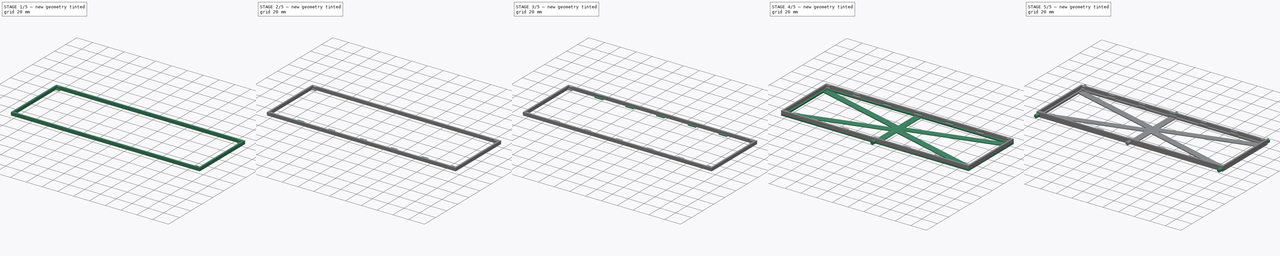
[diagram: build sequence overview — one tinted view per stage of 5, left to right]
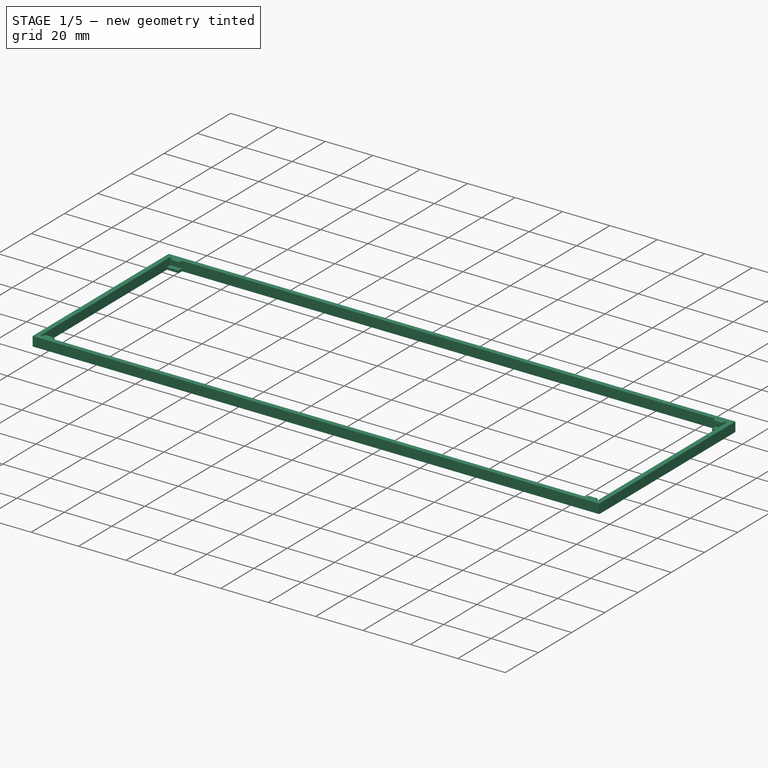
[diagram: stage 1 of 5 — iso view after this stage's code; geometry added in this stage tinted green]
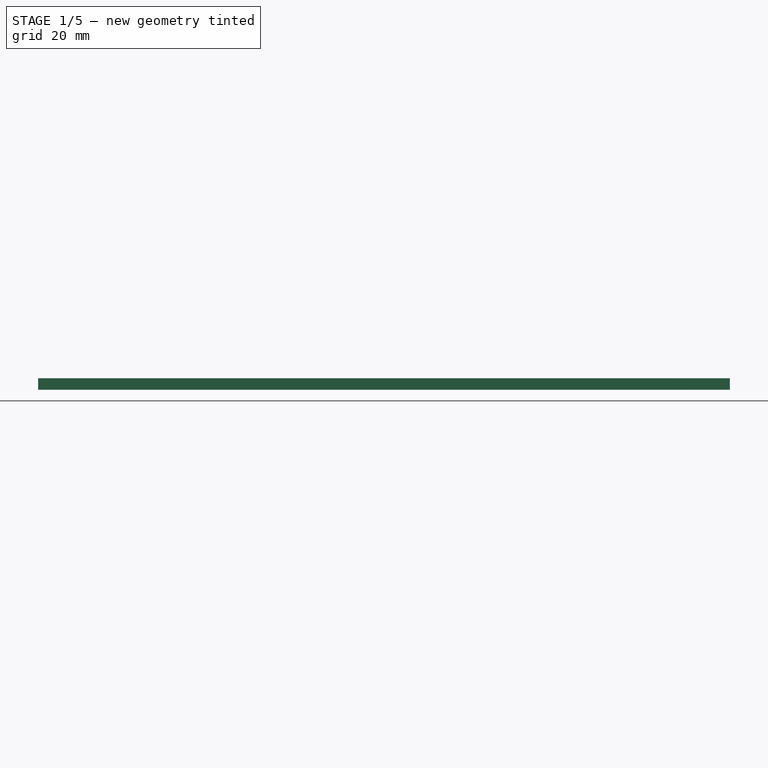
[diagram: stage 1 of 5 — front view after this stage's code; geometry added in this stage tinted green]
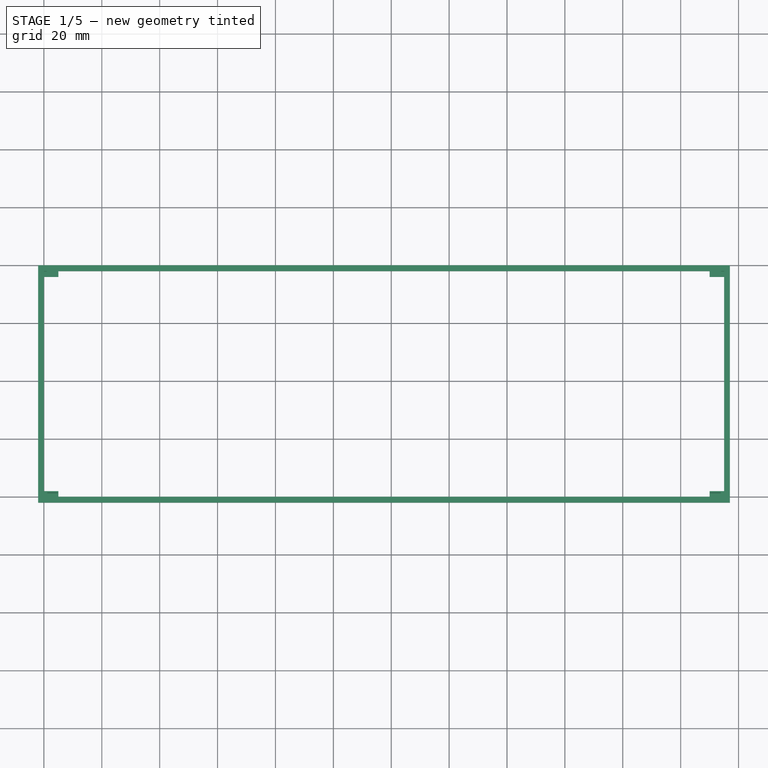
[diagram: stage 1 of 5 — top view after this stage's code; geometry added in this stage tinted green]
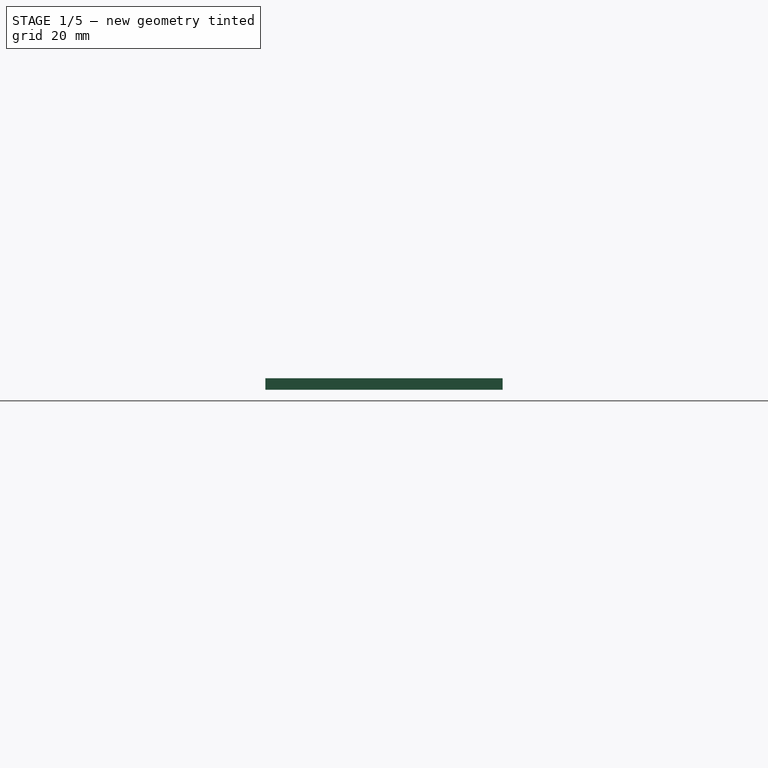
[diagram: stage 1 of 5 — right view after this stage's code; geometry added in this stage tinted green]
FCSTD DOCUMENT  (FreeCAD 0.19R)
Label: nixie_driver_bracket
License: All rights reserved
LicenseURL: http://en.wikipedia.org/wiki/All_rights_reserved
objects: Sketcher::SketchObject×37, PartDesign::Pad×37, PartDesign::Fillet×20, PartDesign::Body×1
note: 152 computed .brp shape members not serialized (recipe doc carries the construction recipe); baked Part::Feature solids carry a one-line shape summary decoded from their .brp

FEATURE [Sketcher::SketchObject] Sketch
  FullyConstrained = true
  MapMode = 5
  Support = -> [XY_Plane]
  sketch-geometry (8):
    g0: LineSegment StartX=0 StartY=78 StartZ=0 EndX=235 EndY=78 EndZ=0
    g1: LineSegment StartX=235 StartY=78 StartZ=0 EndX=235 EndY=0 EndZ=0
    g2: LineSegment StartX=235 StartY=0 StartZ=0 EndX=0 EndY=0 EndZ=0
    g3: LineSegment StartX=0 StartY=0 StartZ=0 EndX=0 EndY=78 EndZ=0
    g4: LineSegment StartX=-2 StartY=80 StartZ=0 EndX=237 EndY=80 EndZ=0
    g5: LineSegment StartX=237 StartY=80 StartZ=0 EndX=237 EndY=-2 EndZ=0
    g6: LineSegment StartX=237 StartY=-2 StartZ=0 EndX=-2 EndY=-2 EndZ=0
    g7: LineSegment StartX=-2 StartY=-2 StartZ=0 EndX=-2 EndY=80 EndZ=0
  constraints (23):
    c: Coincident(g0,g1)
    c: Coincident(g1,g2)
    c: Coincident(g2,g3)
    c: Coincident(g3,g0)
    c: Horizontal(g0)
    c: Horizontal(g2)
    c: Vertical(g1)
    c: Vertical(g3)
    c: Distance(g0) = 235
    c: Distance(g1) = 78
    c: Coincident(g2,g-1)
    c: Coincident(g4,g5)
    c: Coincident(g5,g6)
    c: Coincident(g6,g7)
    c: Coincident(g7,g4)
    c: Horizontal(g4)
    c: Horizontal(g6)
    c: Vertical(g5)
    c: Vertical(g7)
    c: Distance(g0,g4) = 2
    c: Distance(g1,g6) = 2
    c: Distance(g2,g7) = 2
    c: Distance(g1,g5) = 2
FEATURE [PartDesign::Pad] Pad
  Direction = (1,1,1)
  Length = 4
  Length2 = 100
  Profile = -> Sketch
  Type = 0
FEATURE [Sketcher::SketchObject] Sketch001
  FullyConstrained = true
  MapMode = 5
  Placement = pos=(0,78,0) rot=(1,0,0;1.5708rad)
  Support = -> [Pad]
  sketch-geometry (4):
    g0: LineSegment StartX=0 StartY=-2e-16 StartZ=0 EndX=5 EndY=-2e-16 EndZ=0
    g1: LineSegment StartX=5 StartY=-2e-16 StartZ=0 EndX=5 EndY=1 EndZ=0
    g2: LineSegment StartX=5 StartY=1 StartZ=0 EndX=0 EndY=1 EndZ=0
    g3: LineSegment StartX=0 StartY=1 StartZ=0 EndX=0 EndY=-2e-16 EndZ=0
  constraints (11):
    c: Coincident(g0,g1)
    c: Coincident(g1,g2)
    c: Coincident(g2,g3)
    c: Coincident(g3,g0)
    c: Horizontal(g0)
    c: Horizontal(g2)
    c: Vertical(g1)
    c: Vertical(g3)
    c: Distance(g3) = 1
    c: Distance(g0) = 5
    c: Coincident(g0,g-1)
FEATURE [PartDesign::Pad] Pad001
  BaseFeature = -> Pad
  Direction = (1,1,1)
  Length = 2
  Length2 = 100
  Profile = -> Sketch001
  Type = 0
FEATURE [Sketcher::SketchObject] Sketch002
  ExternalGeometry = -> [Pad001]
  FullyConstrained = true
  MapMode = 5
  Placement = pos=(0,78,0) rot=(1,0,0;1.5708rad)
  Support = -> [Pad001]
  sketch-geometry (4):
    g0: LineSegment StartX=230 StartY=1 StartZ=0 EndX=235 EndY=1 EndZ=0
    g1: LineSegment StartX=235 StartY=1 StartZ=0 EndX=235 EndY=0 EndZ=0
    g2: LineSegment StartX=235 StartY=0 StartZ=0 EndX=230 EndY=0 EndZ=0
    g3: LineSegment StartX=230 StartY=0 StartZ=0 EndX=230 EndY=1 EndZ=0
  constraints (11):
    c: Coincident(g0,g1)
    c: Coincident(g1,g2)
    c: Coincident(g2,g3)
    c: Coincident(g3,g0)
    c: Horizontal(g0)
    c: Horizontal(g2)
    c: Vertical(g1)
    c: Vertical(g3)
    c: Distance(g1) = 1
    c: Distance(g2) = 5
    c: Coincident(g-3,g1)
FEATURE [PartDesign::Pad] Pad002
  BaseFeature = -> Pad001
  Direction = (1,1,1)
  Length = 2
  Length2 = 100
  Profile = -> Sketch002
  Type = 0
FEATURE [Sketcher::SketchObject] Sketch003
  ExternalGeometry = -> [Pad002]
  FullyConstrained = true
  MapMode = 5
  Placement = pos=(0,0,0) rot=(0,0.707107,0.707107;3.14159rad)
  Support = -> [Pad002]
  sketch-geometry (4):
    g0: LineSegment StartX=-235 StartY=1 StartZ=0 EndX=-230 EndY=1 EndZ=0
    g1: LineSegment StartX=-230 StartY=1 StartZ=0 EndX=-230 EndY=0 EndZ=0
    g2: LineSegment StartX=-230 StartY=0 StartZ=0 EndX=-235 EndY=0 EndZ=0
    g3: LineSegment StartX=-235 StartY=0 StartZ=0 EndX=-235 EndY=1 EndZ=0
  constraints (11):
    c: Coincident(g0,g1)
    c: Coincident(g1,g2)
    c: Coincident(g2,g3)
    c: Coincident(g3,g0)
    c: Horizontal(g0)
    c: Horizontal(g2)
    c: Vertical(g1)
    c: Vertical(g3)
    c: Distance(g0) = 5
    c: Distance(g3) = 1
    c: Coincident(g2,g-3)
FEATURE [PartDesign::Pad] Pad003
  BaseFeature = -> Pad002
  Direction = (1,1,1)
  Length = 2
  Length2 = 100
  Profile = -> Sketch003
  Type = 0
FEATURE [Sketcher::SketchObject] Sketch004
  FullyConstrained = true
  MapMode = 5
  Placement = pos=(0,0,0) rot=(0,0.707107,0.707107;3.14159rad)
  Support = -> [Pad003]
  sketch-geometry (4):
    g0: LineSegment StartX=-5 StartY=1 StartZ=0 EndX=0 EndY=1 EndZ=0
    g1: LineSegment StartX=0 StartY=1 StartZ=0 EndX=0 EndY=1e-16 EndZ=0
    g2: LineSegment StartX=0 StartY=1e-16 StartZ=0 EndX=-5 EndY=1e-16 EndZ=0
    g3: LineSegment StartX=-5 StartY=1e-16 StartZ=0 EndX=-5 EndY=1 EndZ=0
  constraints (11):
    c: Coincident(g0,g1)
    c: Coincident(g1,g2)
    c: Coincident(g2,g3)
    c: Coincident(g3,g0)
    c: Horizontal(g0)
    c: Horizontal(g2)
    c: Vertical(g1)
    c: Vertical(g3)
    c: Distance(g1) = 1
    c: Distance(g2) = 5
    c: Coincident(g-1,g1)
FEATURE [PartDesign::Pad] Pad004
  BaseFeature = -> Pad003
  Direction = (1,1,1)
  Length = 2
  Length2 = 100
  Profile = -> Sketch004
  Type = 0
FEATURE [Sketcher::SketchObject] Sketch005
  ExternalGeometry = -> [Pad004]
  FullyConstrained = true
  MapMode = 5
  Placement = pos=(0,78,0) rot=(1,0,0;1.5708rad)
  Support = -> [Pad004]
  sketch-geometry (4):
    g0: LineSegment StartX=1 StartY=4 StartZ=0 EndX=5 EndY=4 EndZ=0
    g1: LineSegment StartX=5 StartY=4 StartZ=0 EndX=5 EndY=3 EndZ=0
    g2: LineSegment StartX=5 StartY=3 StartZ=0 EndX=1 EndY=3 EndZ=0
    g3: LineSegment StartX=1 StartY=3 StartZ=0 EndX=1 EndY=4 EndZ=0
  constraints (12):
    c: Coincident(g0,g1)
    c: Coincident(g1,g2)
    c: Coincident(g2,g3)
    c: Coincident(g3,g0)
    c: Horizontal(g0)
    c: Horizontal(g2)
    c: Vertical(g1)
    c: Vertical(g3)
    c: Distance(g0) = 4
    c: Distance(g1) = 1
    c: DistanceY(g0,g-3) = 0
    c: DistanceX(g-3,g0) = 1
FEATURE [PartDesign::Pad] Pad005
  BaseFeature = -> Pad004
  Direction = (1,1,1)
  Length = 1.5
  Length2 = 100
  Profile = -> Sketch005
  Type = 0
FEATURE [Sketcher::SketchObject] Sketch006
  ExternalGeometry = -> [Pad005]
  FullyConstrained = true
  MapMode = 5
  Placement = pos=(0,78,0) rot=(1,0,0;1.5708rad)
  Support = -> [Pad005]
  sketch-geometry (4):
    g0: LineSegment StartX=230 StartY=4 StartZ=0 EndX=234 EndY=4 EndZ=0
    g1: LineSegment StartX=234 StartY=4 StartZ=0 EndX=234 EndY=3 EndZ=0
    g2: LineSegment StartX=234 StartY=3 StartZ=0 EndX=230 EndY=3 EndZ=0
    g3: LineSegment StartX=230 StartY=3 StartZ=0 EndX=230 EndY=4 EndZ=0
  constraints (12):
    c: Coincident(g0,g1)
    c: Coincident(g1,g2)
    c: Coincident(g2,g3)
    c: Coincident(g3,g0)
    c: Horizontal(g0)
    c: Horizontal(g2)
    c: Vertical(g1)
    c: Vertical(g3)
    c: Distance(g1) = 1
    c: Distance(g0) = 4
    c: DistanceY(g0,g-3) = 0
    c: DistanceX(g0,g-3) = 1
FEATURE [PartDesign::Pad] Pad006
  BaseFeature = -> Pad005
  Direction = (1,1,1)
  Length = 1.5
  Length2 = 100
  Profile = -> Sketch006
  Type = 0
FEATURE [Sketcher::SketchObject] Sketch007
  ExternalGeometry = -> [Pad006]
  FullyConstrained = true
  MapMode = 5
  Placement = pos=(0,0,0) rot=(0,0.707107,0.707107;3.14159rad)
  Support = -> [Pad006]
  sketch-geometry (4):
    g0: LineSegment StartX=-234 StartY=4 StartZ=0 EndX=-230 EndY=4 EndZ=0
    g1: LineSegment StartX=-230 StartY=4 StartZ=0 EndX=-230 EndY=3 EndZ=0
    g2: LineSegment StartX=-230 StartY=3 StartZ=0 EndX=-234 EndY=3 EndZ=0
    g3: LineSegment StartX=-234 StartY=3 StartZ=0 EndX=-234 EndY=4 EndZ=0
  constraints (12):
    c: Coincident(g0,g1)
    c: Coincident(g1,g2)
    c: Coincident(g2,g3)
    c: Coincident(g3,g0)
    c: Horizontal(g0)
    c: Horizontal(g2)
    c: Vertical(g1)
    c: Vertical(g3)
    c: Distance(g0) = 4
    c: Distance(g1) = 1
    c: DistanceY(g0,g-3) = 0
    c: DistanceX(g-3,g0) = 1
FEATURE [PartDesign::Pad] Pad007
  BaseFeature = -> Pad006
  Direction = (1,1,1)
  Length = 1.5
  Length2 = 100
  Profile = -> Sketch007
  Type = 0
FEATURE [Sketcher::SketchObject] Sketch008
  ExternalGeometry = -> [Pad007]
  FullyConstrained = true
  MapMode = 5
  Placement = pos=(0,0,0) rot=(0,0.707107,0.707107;3.14159rad)
  Support = -> [Pad007]
  sketch-geometry (4):
    g0: LineSegment StartX=-5 StartY=4 StartZ=0 EndX=-1 EndY=4 EndZ=0
    g1: LineSegment StartX=-1 StartY=4 StartZ=0 EndX=-1 EndY=3 EndZ=0
    g2: LineSegment StartX=-1 StartY=3 StartZ=0 EndX=-5 EndY=3 EndZ=0
    g3: LineSegment StartX=-5 StartY=3 StartZ=0 EndX=-5 EndY=4 EndZ=0
  constraints (12):
    c: Coincident(g0,g1)
    c: Coincident(g1,g2)
    c: Coincident(g2,g3)
    c: Coincident(g3,g0)
    c: Horizontal(g0)
    c: Horizontal(g2)
    c: Vertical(g1)
    c: Vertical(g3)
    c: Distance(g1) = 1
    c: Distance(g0) = 4
    c: DistanceY(g0,g-3) = 0
    c: DistanceX(g0,g-3) = 1
FEATURE [PartDesign::Pad] Pad008
  BaseFeature = -> Pad007
  Direction = (1,1,1)
  Length = 1.5
  Length2 = 100
  Profile = -> Sketch008
  Type = 0
FEATURE [PartDesign::Fillet] Fillet
  Base = -> Pad008 [Face44]
  BaseFeature = -> Pad008
  Radius = 0.4
  SupportTransform = false
FEATURE [PartDesign::Fillet] Fillet001
  Base = -> Fillet [Face33]
  BaseFeature = -> Fillet
  Radius = 0.4
  SupportTransform = false
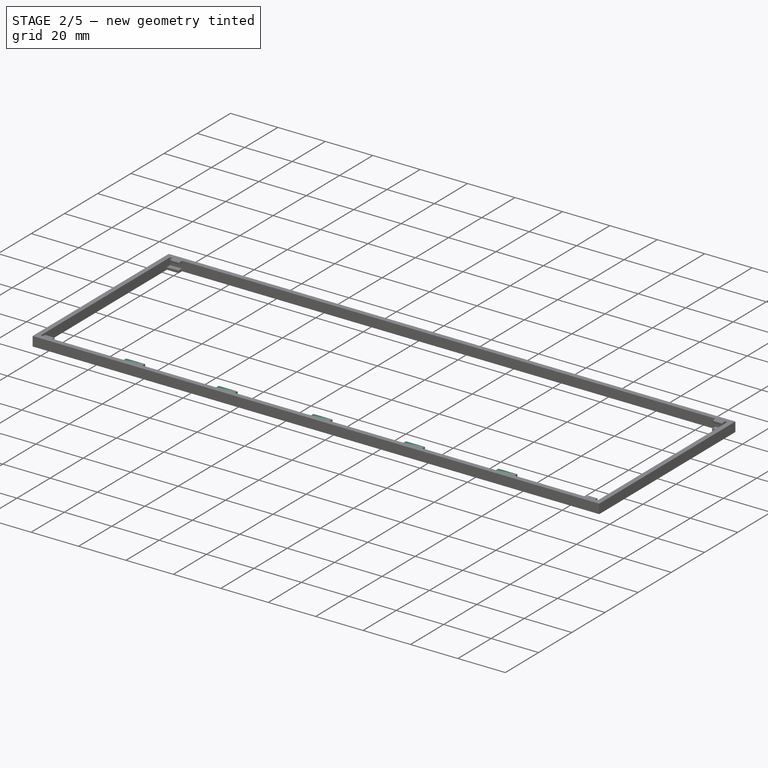
[diagram: stage 2 of 5 — iso view after this stage's code; geometry added in this stage tinted green]
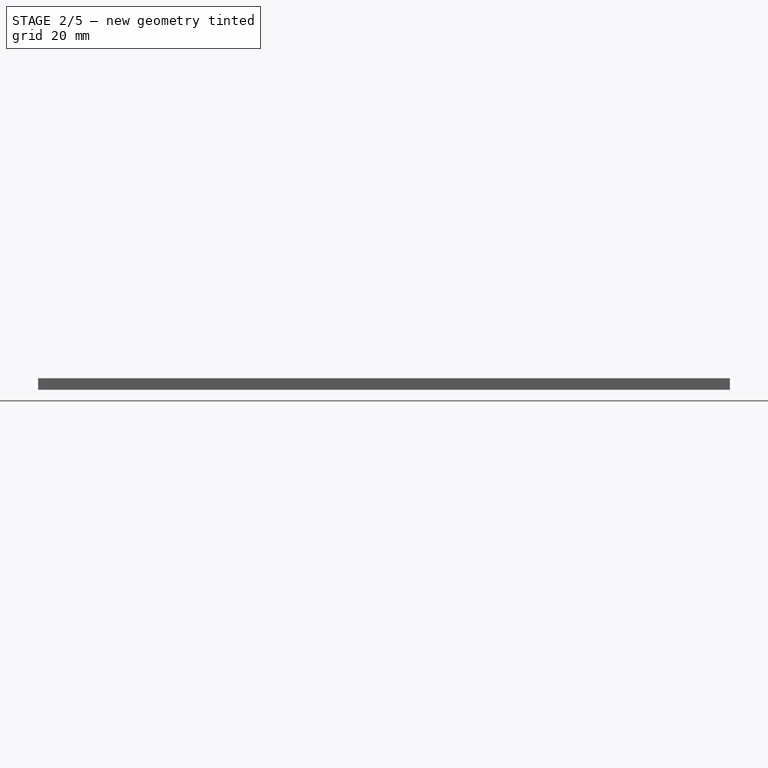
[diagram: stage 2 of 5 — front view after this stage's code; geometry added in this stage tinted green]
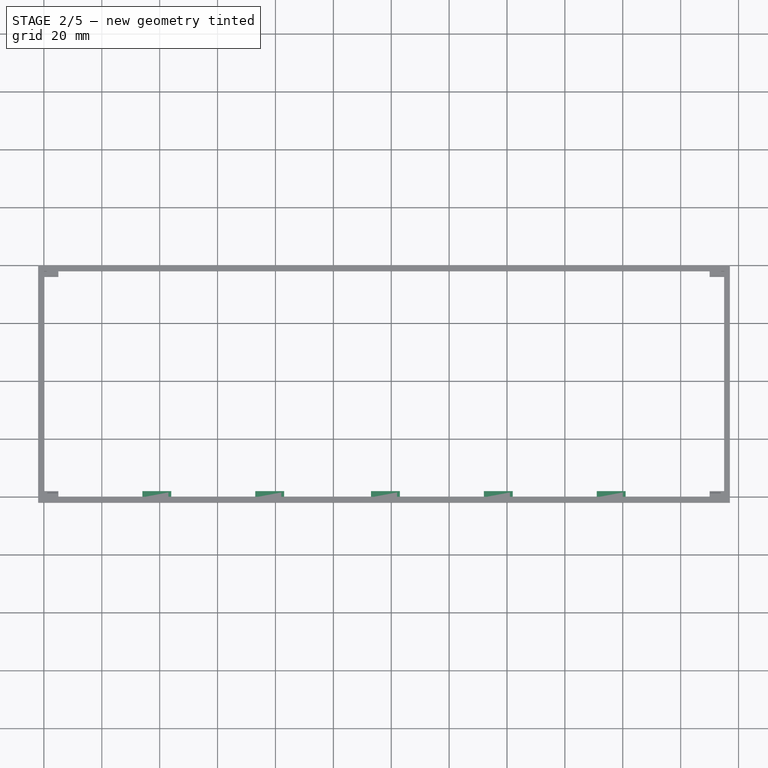
[diagram: stage 2 of 5 — top view after this stage's code; geometry added in this stage tinted green]
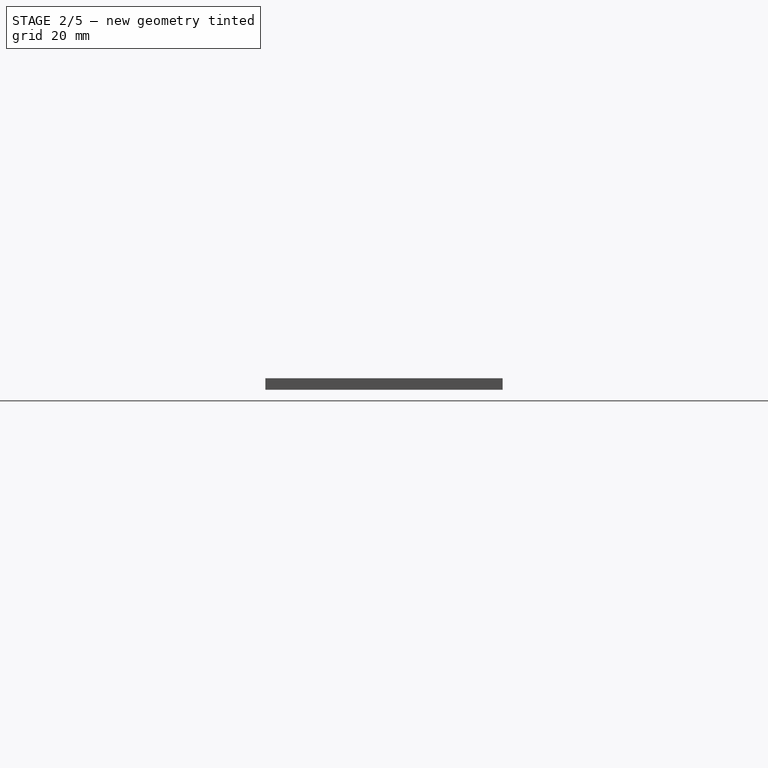
[diagram: stage 2 of 5 — right view after this stage's code; geometry added in this stage tinted green]
FEATURE [PartDesign::Fillet] Fillet002
  Base = -> Fillet001 [Face45]
  BaseFeature = -> Fillet001
  Radius = 0.4
  SupportTransform = false
FEATURE [PartDesign::Fillet] Fillet003
  Base = -> Fillet002 [Face46]
  BaseFeature = -> Fillet002
  Radius = 0.4
  SupportTransform = false
FEATURE [Sketcher::SketchObject] Sketch009
  ExternalGeometry = -> [Fillet003]
  FullyConstrained = true
  MapMode = 5
  Placement = pos=(0,0,0) rot=(0,0.707107,0.707107;3.14159rad)
  Support = -> [Fillet003]
  sketch-geometry (4):
    g0: LineSegment StartX=-201 StartY=1 StartZ=0 EndX=-191 EndY=1 EndZ=0
    g1: LineSegment StartX=-191 StartY=1 StartZ=0 EndX=-191 EndY=0 EndZ=0
    g2: LineSegment StartX=-191 StartY=0 StartZ=0 EndX=-201 EndY=0 EndZ=0
    g3: LineSegment StartX=-201 StartY=0 StartZ=0 EndX=-201 EndY=1 EndZ=0
  constraints (12):
    c: Coincident(g0,g1)
    c: Coincident(g1,g2)
    c: Coincident(g2,g3)
    c: Coincident(g3,g0)
    c: Horizontal(g0)
    c: Horizontal(g2)
    c: Vertical(g1)
    c: Vertical(g3)
    c: Distance(g2) = 10
    c: Distance(g3) = 1
    c: PointOnObject(g2,g-1)
    c: Distance(g-3,g2) = 29
FEATURE [PartDesign::Pad] Pad009
  BaseFeature = -> Fillet003
  Direction = (1,1,1)
  Length = 2
  Length2 = 100
  Profile = -> Sketch009
  Type = 0
FEATURE [Sketcher::SketchObject] Sketch010
  ExternalGeometry = -> [Pad009]
  FullyConstrained = true
  MapMode = 5
  Placement = pos=(0,0,0) rot=(0,0.707107,0.707107;3.14159rad)
  Support = -> [Pad009]
  sketch-geometry (4):
    g0: LineSegment StartX=-162 StartY=1 StartZ=0 EndX=-152 EndY=1 EndZ=0
    g1: LineSegment StartX=-152 StartY=1 StartZ=0 EndX=-152 EndY=0 EndZ=0
    g2: LineSegment StartX=-152 StartY=0 StartZ=0 EndX=-162 EndY=0 EndZ=0
    g3: LineSegment StartX=-162 StartY=0 StartZ=0 EndX=-162 EndY=1 EndZ=0
  constraints (12):
    c: Coincident(g0,g1)
    c: Coincident(g1,g2)
    c: Coincident(g2,g3)
    c: Coincident(g3,g0)
    c: Horizontal(g0)
    c: Horizontal(g2)
    c: Vertical(g1)
    c: Vertical(g3)
    c: Distance(g2) = 10
    c: Distance(g3) = 1
    c: PointOnObject(g2,g-1)
    c: Distance(g2,g-3) = 29
FEATURE [PartDesign::Pad] Pad010
  BaseFeature = -> Pad009
  Direction = (1,1,1)
  Length = 2
  Length2 = 100
  Profile = -> Sketch010
  Type = 0
FEATURE [Sketcher::SketchObject] Sketch011
  ExternalGeometry = -> [Pad010]
  FullyConstrained = true
  MapMode = 5
  Placement = pos=(0,0,0) rot=(0,0.707107,0.707107;3.14159rad)
  Support = -> [Pad010]
  sketch-geometry (4):
    g0: LineSegment StartX=-123 StartY=1 StartZ=0 EndX=-113 EndY=1 EndZ=0
    g1: LineSegment StartX=-113 StartY=1 StartZ=0 EndX=-113 EndY=0 EndZ=0
    g2: LineSegment StartX=-113 StartY=0 StartZ=0 EndX=-123 EndY=0 EndZ=0
    g3: LineSegment StartX=-123 StartY=0 StartZ=0 EndX=-123 EndY=1 EndZ=0
  constraints (12):
    c: Coincident(g0,g1)
    c: Coincident(g1,g2)
    c: Coincident(g2,g3)
    c: Coincident(g3,g0)
    c: Horizontal(g0)
    c: Horizontal(g2)
    c: Vertical(g1)
    c: Vertical(g3)
    c: Distance(g2) = 10
    c: Distance(g3) = 1
    c: PointOnObject(g2,g-1)
    c: Distance(g2,g-3) = 29
FEATURE [PartDesign::Pad] Pad011
  BaseFeature = -> Pad010
  Direction = (1,1,1)
  Length = 2
  Length2 = 100
  Profile = -> Sketch011
  Type = 0
FEATURE [Sketcher::SketchObject] Sketch012
  ExternalGeometry = -> [Pad011]
  FullyConstrained = true
  MapMode = 5
  Placement = pos=(0,0,0) rot=(0,0.707107,0.707107;3.14159rad)
  Support = -> [Pad011]
  sketch-geometry (4):
    g0: LineSegment StartX=-44 StartY=1 StartZ=0 EndX=-34 EndY=1 EndZ=0
    g1: LineSegment StartX=-34 StartY=1 StartZ=0 EndX=-34 EndY=0 EndZ=0
    g2: LineSegment StartX=-34 StartY=0 StartZ=0 EndX=-44 EndY=0 EndZ=0
    g3: LineSegment StartX=-44 StartY=0 StartZ=0 EndX=-44 EndY=1 EndZ=0
  constraints (12):
    c: Coincident(g0,g1)
    c: Coincident(g1,g2)
    c: Coincident(g2,g3)
    c: Coincident(g3,g0)
    c: Horizontal(g0)
    c: Horizontal(g2)
    c: Vertical(g1)
    c: Vertical(g3)
    c: Distance(g2) = 10
    c: Distance(g3) = 1
    c: PointOnObject(g1,g-1)
    c: Distance(g1,g-3) = 29
FEATURE [PartDesign::Pad] Pad012
  BaseFeature = -> Pad011
  Direction = (1,1,1)
  Length = 2
  Length2 = 100
  Profile = -> Sketch012
  Type = 0
FEATURE [Sketcher::SketchObject] Sketch013
  ExternalGeometry = -> [Pad012]
  FullyConstrained = true
  MapMode = 5
  Placement = pos=(0,0,0) rot=(0,0.707107,0.707107;3.14159rad)
  Support = -> [Pad012]
  sketch-geometry (4):
    g0: LineSegment StartX=-83 StartY=1 StartZ=0 EndX=-73 EndY=1 EndZ=0
    g1: LineSegment StartX=-73 StartY=1 StartZ=0 EndX=-73 EndY=0 EndZ=0
    g2: LineSegment StartX=-73 StartY=0 StartZ=0 EndX=-83 EndY=0 EndZ=0
    g3: LineSegment StartX=-83 StartY=0 StartZ=0 EndX=-83 EndY=1 EndZ=0
  constraints (12):
    c: Coincident(g0,g1)
    c: Coincident(g1,g2)
    c: Coincident(g2,g3)
    c: Coincident(g3,g0)
    c: Horizontal(g0)
    c: Horizontal(g2)
    c: Vertical(g1)
    c: Vertical(g3)
    c: Distance(g3) = 1
    c: Distance(g2) = 10
    c: PointOnObject(g2,g-1)
    c: Distance(g-3,g1) = 29
FEATURE [PartDesign::Pad] Pad013
  BaseFeature = -> Pad012
  Direction = (1,1,1)
  Length = 2
  Length2 = 100
  Profile = -> Sketch013
  Type = 0
FEATURE [Sketcher::SketchObject] Sketch014
  ExternalGeometry = -> [Pad013]
  FullyConstrained = true
  MapMode = 5
  Placement = pos=(0,0,0) rot=(0,0.707107,0.707107;3.14159rad)
  Support = -> [Pad013]
  sketch-geometry (4):
    g0: LineSegment StartX=-43 StartY=4 StartZ=0 EndX=-35 EndY=4 EndZ=0
    g1: LineSegment StartX=-35 StartY=4 StartZ=0 EndX=-35 EndY=3 EndZ=0
    g2: LineSegment StartX=-35 StartY=3 StartZ=0 EndX=-43 EndY=3 EndZ=0
    g3: LineSegment StartX=-43 StartY=3 StartZ=0 EndX=-43 EndY=4 EndZ=0
  constraints (12):
    c: Coincident(g0,g1)
    c: Coincident(g1,g2)
    c: Coincident(g2,g3)
    c: Coincident(g3,g0)
    c: Horizontal(g0)
    c: Horizontal(g2)
    c: Vertical(g1)
    c: Vertical(g3)
    c: Distance(g2) = 8
    c: Distance(g3) = 1
    c: DistanceY(g-3,g2) = 2
    c: DistanceX(g1,g-3) = 1
FEATURE [PartDesign::Pad] Pad014
  BaseFeature = -> Pad013
  Direction = (1,1,1)
  Length = 1.5
  Length2 = 100
  Profile = -> Sketch014
  Type = 0
FEATURE [Sketcher::SketchObject] Sketch015
  ExternalGeometry = -> [Pad014]
  FullyConstrained = true
  MapMode = 5
  Placement = pos=(0,0,0) rot=(0,0.707107,0.707107;3.14159rad)
  Support = -> [Pad014]
  sketch-geometry (4):
    g0: LineSegment StartX=-82 StartY=4 StartZ=0 EndX=-74 EndY=4 EndZ=0
    g1: LineSegment StartX=-74 StartY=4 StartZ=0 EndX=-74 EndY=3 EndZ=0
    g2: LineSegment StartX=-74 StartY=3 StartZ=0 EndX=-82 EndY=3 EndZ=0
    g3: LineSegment StartX=-82 StartY=3 StartZ=0 EndX=-82 EndY=4 EndZ=0
  constraints (12):
    c: Coincident(g0,g1)
    c: Coincident(g1,g2)
    c: Coincident(g2,g3)
    c: Coincident(g3,g0)
    c: Horizontal(g0)
    c: Horizontal(g2)
    c: Vertical(g1)
    c: Vertical(g3)
    c: Distance(g2) = 8
    c: Distance(g1) = 1
    c: DistanceX(g1,g-3) = 1
    c: DistanceY(g-3,g2) = 2
FEATURE [PartDesign::Pad] Pad015
  BaseFeature = -> Pad014
  Direction = (1,1,1)
  Length = 1.5
  Length2 = 100
  Profile = -> Sketch015
  Type = 0
FEATURE [Sketcher::SketchObject] Sketch016
  ExternalGeometry = -> [Pad015]
  FullyConstrained = true
  MapMode = 5
  Placement = pos=(0,0,0) rot=(0,0.707107,0.707107;3.14159rad)
  Support = -> [Pad015]
  sketch-geometry (4):
    g0: LineSegment StartX=-122 StartY=4 StartZ=0 EndX=-114 EndY=4 EndZ=0
    g1: LineSegment StartX=-114 StartY=4 StartZ=0 EndX=-114 EndY=3 EndZ=0
    g2: LineSegment StartX=-114 StartY=3 StartZ=0 EndX=-122 EndY=3 EndZ=0
    g3: LineSegment StartX=-122 StartY=3 StartZ=0 EndX=-122 EndY=4 EndZ=0
  constraints (12):
    c: Coincident(g0,g1)
    c: Coincident(g1,g2)
    c: Coincident(g2,g3)
    c: Coincident(g3,g0)
    c: Horizontal(g0)
    c: Horizontal(g2)
    c: Vertical(g1)
    c: Vertical(g3)
    c: DistanceX(g1,g-3) = 1
    c: Distance(g2) = 8
    c: Distance(g3) = 1
    c: DistanceY(g-3,g2) = 2
FEATURE [PartDesign::Pad] Pad016
  BaseFeature = -> Pad015
  Direction = (1,1,1)
  Length = 1.5
  Length2 = 100
  Profile = -> Sketch016
  Type = 0
FEATURE [Sketcher::SketchObject] Sketch017
  ExternalGeometry = -> [Pad016]
  FullyConstrained = true
  MapMode = 5
  Placement = pos=(0,0,0) rot=(0,0.707107,0.707107;3.14159rad)
  Support = -> [Pad016]
  sketch-geometry (4):
    g0: LineSegment StartX=-161 StartY=4 StartZ=0 EndX=-153 EndY=4 EndZ=0
    g1: LineSegment StartX=-153 StartY=4 StartZ=0 EndX=-153 EndY=3 EndZ=0
    g2: LineSegment StartX=-153 StartY=3 StartZ=0 EndX=-161 EndY=3 EndZ=0
    g3: LineSegment StartX=-161 StartY=3 StartZ=0 EndX=-161 EndY=4 EndZ=0
  constraints (12):
    c: Coincident(g0,g1)
    c: Coincident(g1,g2)
    c: Coincident(g2,g3)
    c: Coincident(g3,g0)
    c: Horizontal(g0)
    c: Horizontal(g2)
    c: Vertical(g1)
    c: Vertical(g3)
    c: DistanceX(g1,g-3) = 1
    c: DistanceY(g-3,g2) = 2
    c: Distance(g3) = 1
    c: Distance(g2) = 8
FEATURE [PartDesign::Pad] Pad017
  BaseFeature = -> Pad016
  Direction = (1,1,1)
  Length = 1.5
  Length2 = 100
  Profile = -> Sketch017
  Type = 0
FEATURE [Sketcher::SketchObject] Sketch018
  ExternalGeometry = -> [Pad017]
  FullyConstrained = true
  MapMode = 5
  Placement = pos=(0,0,0) rot=(0,0.707107,0.707107;3.14159rad)
  Support = -> [Pad017]
  sketch-geometry (4):
    g0: LineSegment StartX=-200 StartY=4 StartZ=0 EndX=-192 EndY=4 EndZ=0
    g1: LineSegment StartX=-192 StartY=4 StartZ=0 EndX=-192 EndY=3 EndZ=0
    g2: LineSegment StartX=-192 StartY=3 StartZ=0 EndX=-200 EndY=3 EndZ=0
    g3: LineSegment StartX=-200 StartY=3 StartZ=0 EndX=-200 EndY=4 EndZ=0
  constraints (12):
    c: Coincident(g0,g1)
    c: Coincident(g1,g2)
    c: Coincident(g2,g3)
    c: Coincident(g3,g0)
    c: Horizontal(g0)
    c: Horizontal(g2)
    c: Vertical(g1)
    c: Vertical(g3)
    c: Distance(g2) = 8
    c: Distance(g3) = 1
    c: DistanceX(g-3,g2) = 1
    c: PointOnObject(g0,g-4)
FEATURE [PartDesign::Pad] Pad018
  BaseFeature = -> Pad017
  Direction = (1,1,1)
  Length = 1.5
  Length2 = 100
  Profile = -> Sketch018
  Type = 0
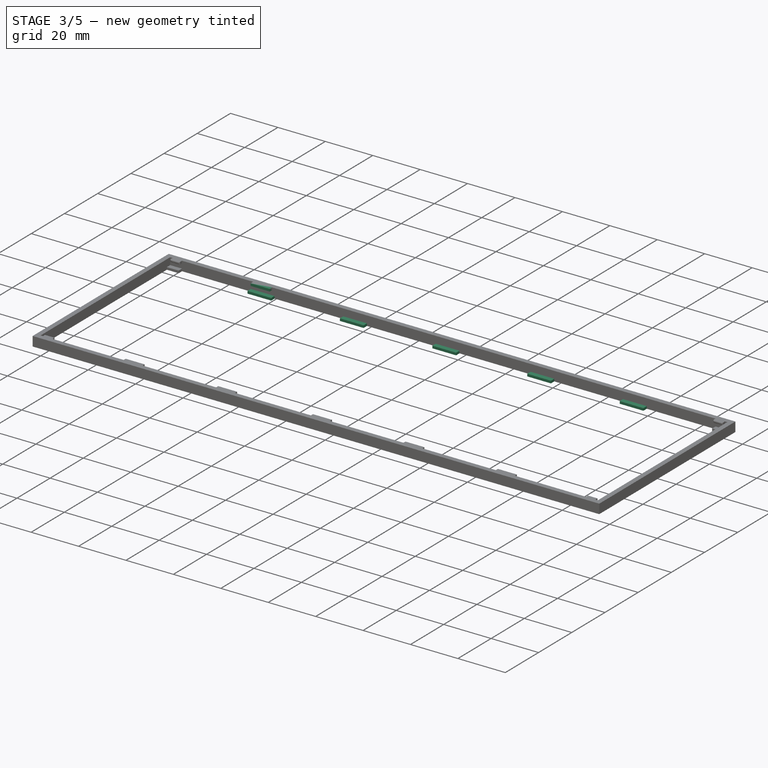
[diagram: stage 3 of 5 — iso view after this stage's code; geometry added in this stage tinted green]
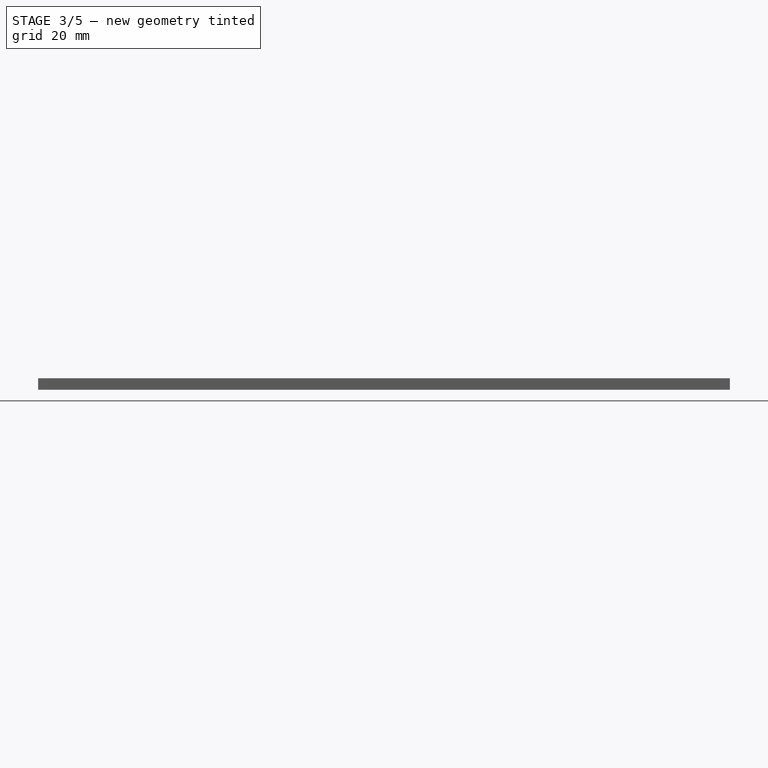
[diagram: stage 3 of 5 — front view after this stage's code; geometry added in this stage tinted green]
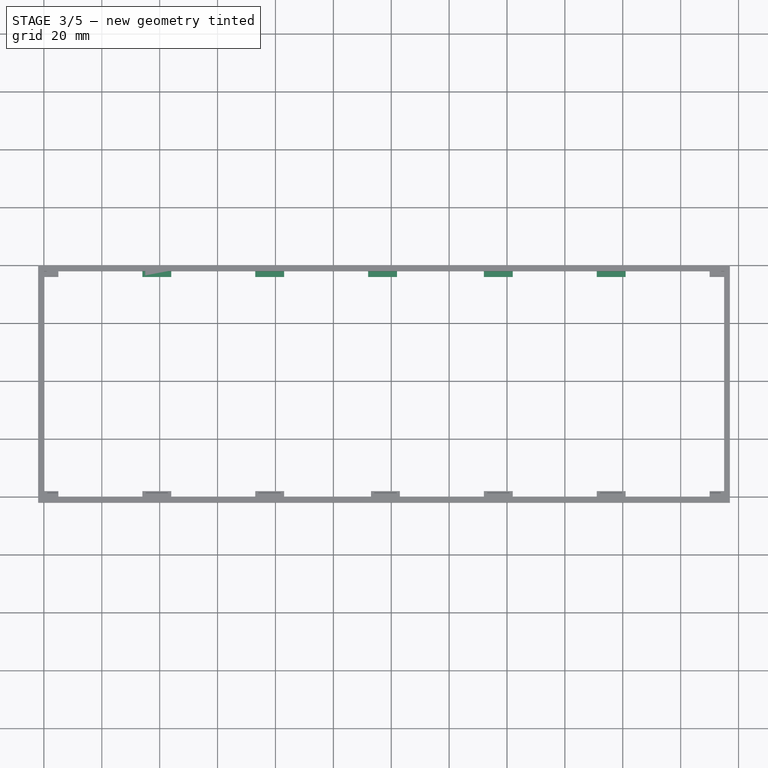
[diagram: stage 3 of 5 — top view after this stage's code; geometry added in this stage tinted green]
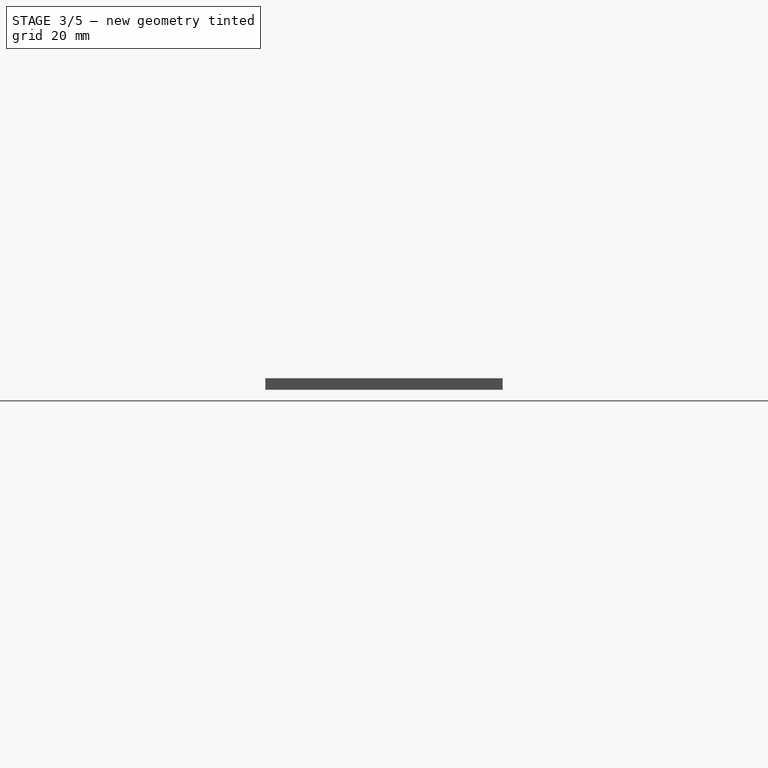
[diagram: stage 3 of 5 — right view after this stage's code; geometry added in this stage tinted green]
FEATURE [PartDesign::Fillet] Fillet004
  Base = -> Pad018 [Face78]
  BaseFeature = -> Pad018
  Radius = 0.4
  SupportTransform = false
FEATURE [PartDesign::Fillet] Fillet005
  Base = -> Fillet004 [Face69]
  BaseFeature = -> Fillet004
  Radius = 0.4
  SupportTransform = false
FEATURE [PartDesign::Fillet] Fillet006
  Base = -> Fillet005 [Face70]
  BaseFeature = -> Fillet005
  Radius = 0.4
  SupportTransform = false
FEATURE [PartDesign::Fillet] Fillet007
  Base = -> Fillet006 [Face71]
  BaseFeature = -> Fillet006
  Radius = 0.4
  SupportTransform = false
FEATURE [PartDesign::Fillet] Fillet008
  Base = -> Fillet007 [Face72]
  BaseFeature = -> Fillet007
  Radius = 0.4
  SupportTransform = false
FEATURE [Sketcher::SketchObject] Sketch019
  ExternalGeometry = -> [Fillet008]
  FullyConstrained = true
  MapMode = 5
  Placement = pos=(0,78,0) rot=(1,0,0;1.5708rad)
  Support = -> [Fillet008]
  sketch-geometry (4):
    g0: LineSegment StartX=34 StartY=1 StartZ=0 EndX=44 EndY=1 EndZ=0
    g1: LineSegment StartX=44 StartY=1 StartZ=0 EndX=44 EndY=0 EndZ=0
    g2: LineSegment StartX=44 StartY=0 StartZ=0 EndX=34 EndY=0 EndZ=0
    g3: LineSegment StartX=34 StartY=0 StartZ=0 EndX=34 EndY=1 EndZ=0
  constraints (12):
    c: Coincident(g0,g1)
    c: Coincident(g1,g2)
    c: Coincident(g2,g3)
    c: Coincident(g3,g0)
    c: Horizontal(g0)
    c: Horizontal(g2)
    c: Vertical(g1)
    c: Vertical(g3)
    c: Distance(g2) = 10
    c: Distance(g3) = 1
    c: PointOnObject(g2,g-1)
    c: Distance(g-3,g2) = 29
FEATURE [PartDesign::Pad] Pad019
  BaseFeature = -> Fillet008
  Direction = (1,1,1)
  Length = 2
  Length2 = 100
  Profile = -> Sketch019
  Type = 0
FEATURE [Sketcher::SketchObject] Sketch020
  ExternalGeometry = -> [Pad019]
  FullyConstrained = true
  MapMode = 5
  Placement = pos=(0,78,0) rot=(1,0,0;1.5708rad)
  Support = -> [Pad019]
  sketch-geometry (4):
    g0: LineSegment StartX=73 StartY=1 StartZ=0 EndX=83 EndY=1 EndZ=0
    g1: LineSegment StartX=83 StartY=1 StartZ=0 EndX=83 EndY=0 EndZ=0
    g2: LineSegment StartX=83 StartY=0 StartZ=0 EndX=73 EndY=0 EndZ=0
    g3: LineSegment StartX=73 StartY=0 StartZ=0 EndX=73 EndY=1 EndZ=0
  constraints (12):
    c: Coincident(g0,g1)
    c: Coincident(g1,g2)
    c: Coincident(g2,g3)
    c: Coincident(g3,g0)
    c: Horizontal(g0)
    c: Horizontal(g2)
    c: Vertical(g1)
    c: Vertical(g3)
    c: Distance(g2) = 10
    c: Distance(g3) = 1
    c: PointOnObject(g1,g-1)
    c: Distance(g-3,g2) = 29
FEATURE [PartDesign::Pad] Pad020
  BaseFeature = -> Pad019
  Direction = (1,1,1)
  Length = 2
  Length2 = 100
  Profile = -> Sketch020
  Type = 0
FEATURE [Sketcher::SketchObject] Sketch021
  ExternalGeometry = -> [Pad020]
  FullyConstrained = true
  MapMode = 5
  Placement = pos=(0,78,0) rot=(1,0,0;1.5708rad)
  Support = -> [Pad020]
  sketch-geometry (4):
    g0: LineSegment StartX=112 StartY=1 StartZ=0 EndX=122 EndY=1 EndZ=0
    g1: LineSegment StartX=122 StartY=1 StartZ=0 EndX=122 EndY=0 EndZ=0
    g2: LineSegment StartX=122 StartY=0 StartZ=0 EndX=112 EndY=0 EndZ=0
    g3: LineSegment StartX=112 StartY=0 StartZ=0 EndX=112 EndY=1 EndZ=0
  constraints (12):
    c: Coincident(g0,g1)
    c: Coincident(g1,g2)
    c: Coincident(g2,g3)
    c: Coincident(g3,g0)
    c: Horizontal(g0)
    c: Horizontal(g2)
    c: Vertical(g1)
    c: Vertical(g3)
    c: Distance(g2) = 10
    c: Distance(g3) = 1
    c: PointOnObject(g2,g-1)
    c: Distance(g-3,g2) = 29
FEATURE [PartDesign::Pad] Pad021
  BaseFeature = -> Pad020
  Direction = (1,1,1)
  Length = 2
  Length2 = 100
  Profile = -> Sketch021
  Type = 0
FEATURE [Sketcher::SketchObject] Sketch022
  ExternalGeometry = -> [Pad021]
  FullyConstrained = true
  MapMode = 5
  Placement = pos=(0,78,0) rot=(1,0,0;1.5708rad)
  Support = -> [Pad021]
  sketch-geometry (4):
    g0: LineSegment StartX=191 StartY=1 StartZ=0 EndX=201 EndY=1 EndZ=0
    g1: LineSegment StartX=201 StartY=1 StartZ=0 EndX=201 EndY=0 EndZ=0
    g2: LineSegment StartX=201 StartY=0 StartZ=0 EndX=191 EndY=0 EndZ=0
    g3: LineSegment StartX=191 StartY=0 StartZ=0 EndX=191 EndY=1 EndZ=0
  constraints (12):
    c: Coincident(g0,g1)
    c: Coincident(g1,g2)
    c: Coincident(g2,g3)
    c: Coincident(g3,g0)
    c: Horizontal(g0)
    c: Horizontal(g2)
    c: Vertical(g1)
    c: Vertical(g3)
    c: Distance(g2) = 10
    c: Distance(g3) = 1
    c: PointOnObject(g1,g-1)
    c: Distance(g-3,g1) = 29
FEATURE [PartDesign::Pad] Pad022
  BaseFeature = -> Pad021
  Direction = (1,1,1)
  Length = 2
  Length2 = 100
  Profile = -> Sketch022
  Type = 0
FEATURE [Sketcher::SketchObject] Sketch023
  ExternalGeometry = -> [Pad022]
  FullyConstrained = true
  MapMode = 5
  Placement = pos=(0,78,0) rot=(1,0,0;1.5708rad)
  Support = -> [Pad022]
  sketch-geometry (4):
    g0: LineSegment StartX=152 StartY=1 StartZ=0 EndX=162 EndY=1 EndZ=0
    g1: LineSegment StartX=162 StartY=1 StartZ=0 EndX=162 EndY=0 EndZ=0
    g2: LineSegment StartX=162 StartY=0 StartZ=0 EndX=152 EndY=0 EndZ=0
    g3: LineSegment StartX=152 StartY=0 StartZ=0 EndX=152 EndY=1 EndZ=0
  constraints (12):
    c: Coincident(g0,g1)
    c: Coincident(g1,g2)
    c: Coincident(g2,g3)
    c: Coincident(g3,g0)
    c: Horizontal(g0)
    c: Horizontal(g2)
    c: Vertical(g1)
    c: Vertical(g3)
    c: Distance(g2) = 10
    c: Distance(g3) = 1
    c: PointOnObject(g2,g-1)
    c: Distance(g1,g-3) = 29
FEATURE [PartDesign::Pad] Pad023
  BaseFeature = -> Pad022
  Direction = (1,1,1)
  Length = 2
  Length2 = 100
  Profile = -> Sketch023
  Type = 0
FEATURE [Sketcher::SketchObject] Sketch024
  ExternalGeometry = -> [Pad023]
  FullyConstrained = true
  MapMode = 5
  Placement = pos=(0,78,0) rot=(1,0,0;1.5708rad)
  Support = -> [Pad023]
  sketch-geometry (4):
    g0: LineSegment StartX=35 StartY=4 StartZ=0 EndX=43 EndY=4 EndZ=0
    g1: LineSegment StartX=43 StartY=4 StartZ=0 EndX=43 EndY=3 EndZ=0
    g2: LineSegment StartX=43 StartY=3 StartZ=0 EndX=35 EndY=3 EndZ=0
    g3: LineSegment StartX=35 StartY=3 StartZ=0 EndX=35 EndY=4 EndZ=0
  constraints (12):
    c: Coincident(g0,g1)
    c: Coincident(g1,g2)
    c: Coincident(g2,g3)
    c: Coincident(g3,g0)
    c: Horizontal(g0)
    c: Horizontal(g2)
    c: Vertical(g1)
    c: Vertical(g3)
    c: Distance(g2) = 8
    c: Distance(g3) = 1
    c: PointOnObject(g0,g-3)
    c: DistanceX(g-4,g2) = 1
FEATURE [PartDesign::Pad] Pad024
  BaseFeature = -> Pad023
  Direction = (1,1,1)
  Length = 1.5
  Length2 = 100
  Profile = -> Sketch024
  Type = 0
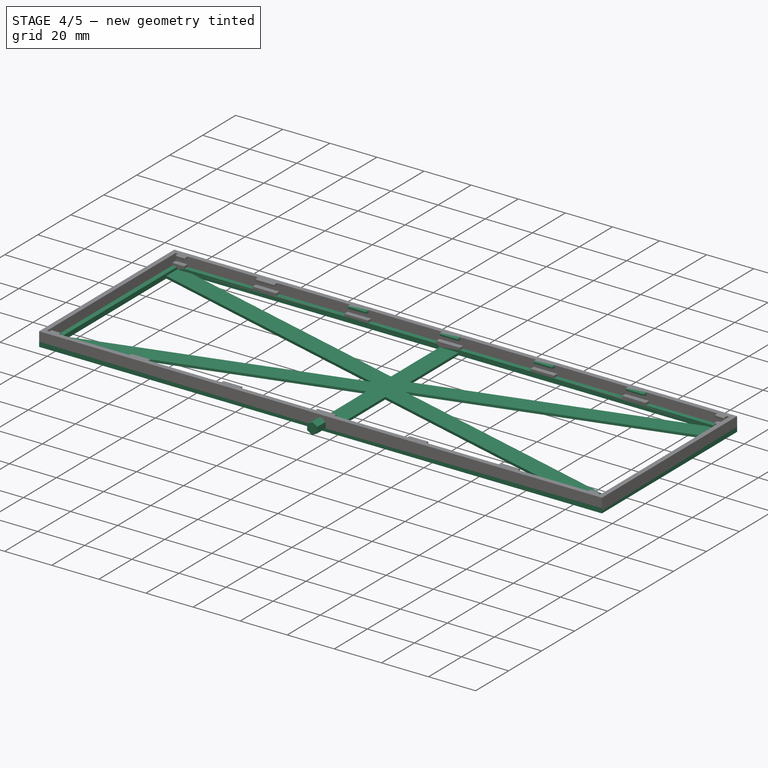
[diagram: stage 4 of 5 — iso view after this stage's code; geometry added in this stage tinted green]
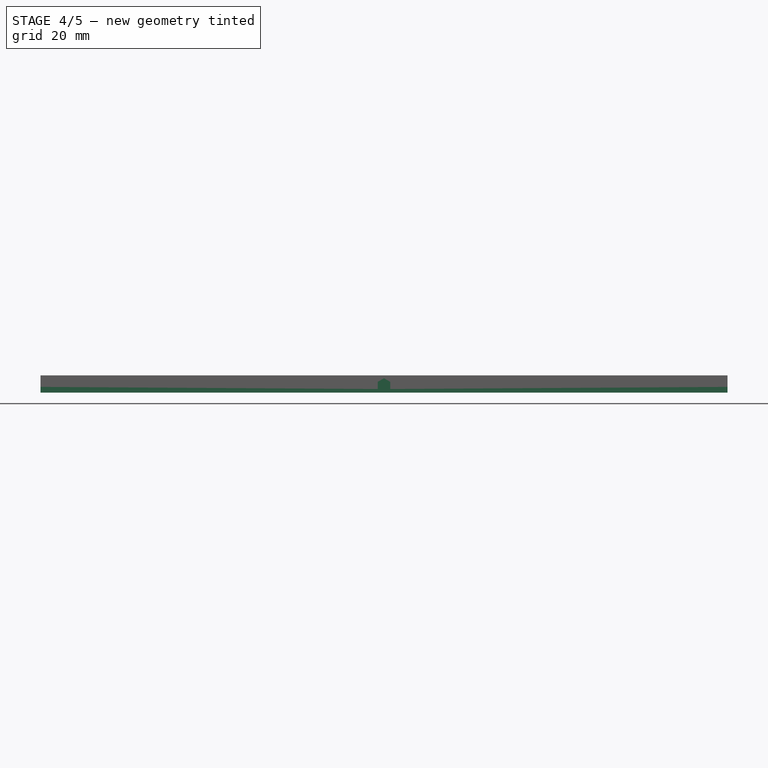
[diagram: stage 4 of 5 — front view after this stage's code; geometry added in this stage tinted green]
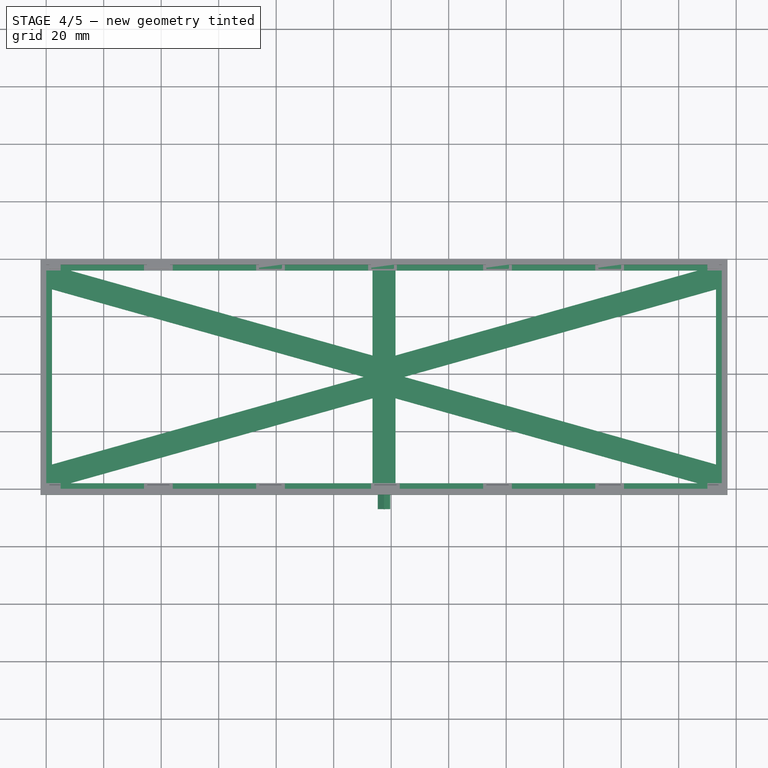
[diagram: stage 4 of 5 — top view after this stage's code; geometry added in this stage tinted green]
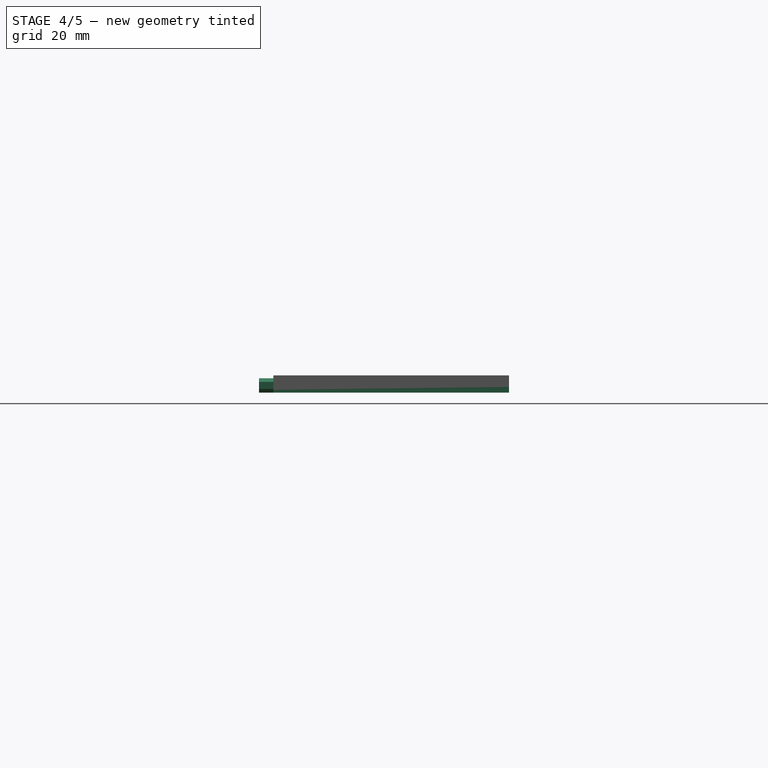
[diagram: stage 4 of 5 — right view after this stage's code; geometry added in this stage tinted green]
FEATURE [Sketcher::SketchObject] Sketch025
  ExternalGeometry = -> [Pad024]
  FullyConstrained = true
  MapMode = 5
  Placement = pos=(0,78,0) rot=(1,0,0;1.5708rad)
  Support = -> [Pad024]
  sketch-geometry (4):
    g0: LineSegment StartX=74 StartY=4 StartZ=0 EndX=82 EndY=4 EndZ=0
    g1: LineSegment StartX=82 StartY=4 StartZ=0 EndX=82 EndY=3 EndZ=0
    g2: LineSegment StartX=82 StartY=3 StartZ=0 EndX=74 EndY=3 EndZ=0
    g3: LineSegment StartX=74 StartY=3 StartZ=0 EndX=74 EndY=4 EndZ=0
  constraints (12):
    c: Coincident(g0,g1)
    c: Coincident(g1,g2)
    c: Coincident(g2,g3)
    c: Coincident(g3,g0)
    c: Horizontal(g0)
    c: Horizontal(g2)
    c: Vertical(g1)
    c: Vertical(g3)
    c: Distance(g2) = 8
    c: Distance(g1) = 1
    c: PointOnObject(g0,g-3)
    c: DistanceX(g1,g-4) = 1
FEATURE [PartDesign::Pad] Pad025
  BaseFeature = -> Pad024
  Direction = (1,1,1)
  Length = 1.5
  Length2 = 100
  Profile = -> Sketch025
  Type = 0
FEATURE [Sketcher::SketchObject] Sketch026
  ExternalGeometry = -> [Pad025]
  FullyConstrained = true
  MapMode = 5
  Placement = pos=(0,78,0) rot=(1,0,0;1.5708rad)
  Support = -> [Pad025]
  sketch-geometry (4):
    g0: LineSegment StartX=113 StartY=4 StartZ=0 EndX=121 EndY=4 EndZ=0
    g1: LineSegment StartX=121 StartY=4 StartZ=0 EndX=121 EndY=3 EndZ=0
    g2: LineSegment StartX=121 StartY=3 StartZ=0 EndX=113 EndY=3 EndZ=0
    g3: LineSegment StartX=113 StartY=3 StartZ=0 EndX=113 EndY=4 EndZ=0
  constraints (12):
    c: Coincident(g0,g1)
    c: Coincident(g1,g2)
    c: Coincident(g2,g3)
    c: Coincident(g3,g0)
    c: Horizontal(g0)
    c: Horizontal(g2)
    c: Vertical(g1)
    c: Vertical(g3)
    c: Distance(g1) = 1
    c: Distance(g0) = 8
    c: PointOnObject(g0,g-3)
    c: DistanceX(g1,g-4) = 1
FEATURE [PartDesign::Pad] Pad026
  BaseFeature = -> Pad025
  Direction = (1,1,1)
  Length = 1.5
  Length2 = 100
  Profile = -> Sketch026
  Type = 0
FEATURE [Sketcher::SketchObject] Sketch027
  ExternalGeometry = -> [Pad026]
  FullyConstrained = true
  MapMode = 5
  Placement = pos=(0,78,0) rot=(1,0,0;1.5708rad)
  Support = -> [Pad026]
  sketch-geometry (4):
    g0: LineSegment StartX=153 StartY=4 StartZ=0 EndX=161 EndY=4 EndZ=0
    g1: LineSegment StartX=161 StartY=4 StartZ=0 EndX=161 EndY=3 EndZ=0
    g2: LineSegment StartX=161 StartY=3 StartZ=0 EndX=153 EndY=3 EndZ=0
    g3: LineSegment StartX=153 StartY=3 StartZ=0 EndX=153 EndY=4 EndZ=0
  constraints (12):
    c: Coincident(g0,g1)
    c: Coincident(g1,g2)
    c: Coincident(g2,g3)
    c: Coincident(g3,g0)
    c: Horizontal(g0)
    c: Horizontal(g2)
    c: Vertical(g1)
    c: Vertical(g3)
    c: Distance(g1) = 1
    c: Distance(g2) = 8
    c: PointOnObject(g0,g-3)
    c: DistanceX(g1,g-4) = 1
FEATURE [PartDesign::Pad] Pad027
  BaseFeature = -> Pad026
  Direction = (1,1,1)
  Length = 1.5
  Length2 = 100
  Profile = -> Sketch027
  Type = 0
FEATURE [Sketcher::SketchObject] Sketch028
  ExternalGeometry = -> [Pad027]
  FullyConstrained = true
  MapMode = 5
  Placement = pos=(0,78,0) rot=(1,0,0;1.5708rad)
  Support = -> [Pad027]
  sketch-geometry (4):
    g0: LineSegment StartX=192 StartY=4 StartZ=0 EndX=200 EndY=4 EndZ=0
    g1: LineSegment StartX=200 StartY=4 StartZ=0 EndX=200 EndY=3 EndZ=0
    g2: LineSegment StartX=200 StartY=3 StartZ=0 EndX=192 EndY=3 EndZ=0
    g3: LineSegment StartX=192 StartY=3 StartZ=0 EndX=192 EndY=4 EndZ=0
  constraints (12):
    c: Coincident(g0,g1)
    c: Coincident(g1,g2)
    c: Coincident(g2,g3)
    c: Coincident(g3,g0)
    c: Horizontal(g0)
    c: Horizontal(g2)
    c: Vertical(g1)
    c: Vertical(g3)
    c: Distance(g1) = 1
    c: Distance(g0) = 8
    c: PointOnObject(g0,g-3)
    c: DistanceX(g1,g-4) = 1
FEATURE [PartDesign::Pad] Pad028
  BaseFeature = -> Pad027
  Direction = (1,1,1)
  Length = 1.5
  Length2 = 100
  Profile = -> Sketch028
  Type = 0
FEATURE [PartDesign::Fillet] Fillet009
  Base = -> Pad028 [Face125]
  BaseFeature = -> Pad028
  Radius = 0.4
  SupportTransform = false
FEATURE [PartDesign::Fillet] Fillet010
  Base = -> Fillet009 [Face125]
  BaseFeature = -> Fillet009
  Radius = 0.4
  SupportTransform = false
FEATURE [PartDesign::Fillet] Fillet011
  Base = -> Fillet010 [Face124]
  BaseFeature = -> Fillet010
  Radius = 0.4
  SupportTransform = false
FEATURE [PartDesign::Fillet] Fillet012
  Base = -> Fillet011 [Face123]
  BaseFeature = -> Fillet011
  Radius = 0.4
  SupportTransform = false
FEATURE [PartDesign::Fillet] Fillet013
  Base = -> Fillet012 [Face122]
  BaseFeature = -> Fillet012
  Radius = 0.4
  SupportTransform = false
FEATURE [Sketcher::SketchObject] Sketch029
  ExternalGeometry = -> [Fillet013]
  FullyConstrained = true
  MapMode = 5
  Placement = pos=(0,0,0) rot=(1,0,0;3.14159rad)
  Support = -> [Fillet013]
  sketch-geometry (8):
    g0: LineSegment StartX=-2 StartY=2 StartZ=0 EndX=237 EndY=2 EndZ=0
    g1: LineSegment StartX=237 StartY=2 StartZ=0 EndX=237 EndY=-80 EndZ=0
    g2: LineSegment StartX=237 StartY=-80 StartZ=0 EndX=-2 EndY=-80 EndZ=0
    g3: LineSegment StartX=-2 StartY=-80 StartZ=0 EndX=-2 EndY=2 EndZ=0
    g4: LineSegment StartX=233 StartY=-2 StartZ=0 EndX=2 EndY=-2 EndZ=0
    g5: LineSegment StartX=2 StartY=-2 StartZ=0 EndX=2 EndY=-76 EndZ=0
    g6: LineSegment StartX=2 StartY=-76 StartZ=0 EndX=233 EndY=-76 EndZ=0
    g7: LineSegment StartX=233 StartY=-76 StartZ=0 EndX=233 EndY=-2 EndZ=0
  constraints (22):
    c: Coincident(g0,g1)
    c: Coincident(g1,g2)
    c: Coincident(g2,g3)
    c: Coincident(g3,g0)
    c: Horizontal(g0)
    c: Horizontal(g2)
    c: Vertical(g1)
    c: Vertical(g3)
    c: Coincident(g0,g-3)
    c: Coincident(g1,g-4)
    c: Coincident(g4,g5)
    c: Coincident(g5,g6)
    c: Coincident(g6,g7)
    c: Coincident(g7,g4)
    c: Horizontal(g4)
    c: Horizontal(g6)
    c: Vertical(g5)
    c: Vertical(g7)
    c: Distance(g4,g1) = 4
    c: Distance(g6,g2) = 4
    c: Distance(g5,g3) = 4
    c: Distance(g4,g0) = 4
FEATURE [PartDesign::Pad] Pad029
  BaseFeature = -> Fillet013
  Direction = (1,1,1)
  Length = 1
  Length2 = 100
  Profile = -> Sketch029
  Type = 0
FEATURE [Sketcher::SketchObject] Sketch030
  ExternalGeometry = -> [Pad029]
  FullyConstrained = false
  MapMode = 5
  Placement = pos=(0,0,-1) rot=(1,0,0;3.14159rad)
  Support = -> [Pad029]
  sketch-geometry (22):
    g0: LineSegment StartX=-2 StartY=2 StartZ=0 EndX=237 EndY=2 EndZ=0
    g1: LineSegment StartX=237 StartY=2 StartZ=0 EndX=237 EndY=-80 EndZ=0
    g2: LineSegment StartX=237 StartY=-80 StartZ=0 EndX=-2 EndY=-80 EndZ=0
    g3: LineSegment StartX=-2 StartY=-80 StartZ=0 EndX=-2 EndY=2 EndZ=0
    g4: LineSegment StartX=8.32811 StartY=-2 StartZ=0 EndX=113.5 EndY=-2 EndZ=0
    g5: LineSegment StartX=8.32811 StartY=-2 StartZ=0 EndX=113.5 EndY=-31.5526 EndZ=0
    g6: LineSegment StartX=113.5 StartY=-31.5526 StartZ=0 EndX=113.5 EndY=-2 EndZ=0
    g7: LineSegment StartX=8.32811 StartY=-76 StartZ=0 EndX=113.5 EndY=-46.4474 EndZ=0
    g8: LineSegment StartX=113.5 StartY=-46.4474 StartZ=0 EndX=113.5 EndY=-76 EndZ=0
    g9: LineSegment StartX=113.5 StartY=-76 StartZ=0 EndX=8.32811 EndY=-76 EndZ=0
    g10: LineSegment StartX=2 StartY=-8.53167 StartZ=0 EndX=110.431 EndY=-39 EndZ=0
    g11: LineSegment StartX=110.431 StartY=-39 StartZ=0 EndX=2 EndY=-69.4683 EndZ=0
    g12: LineSegment StartX=2 StartY=-69.4683 StartZ=0 EndX=2 EndY=-8.53167 EndZ=0
    g13: LineSegment StartX=121.5 StartY=-2 StartZ=0 EndX=121.5 EndY=-31.5526 EndZ=0
    g14: LineSegment StartX=121.5 StartY=-31.5526 StartZ=0 EndX=226.672 EndY=-2 EndZ=0
    g15: LineSegment StartX=226.672 StartY=-2 StartZ=0 EndX=121.5 EndY=-2 EndZ=0
    g16: LineSegment StartX=121.5 StartY=-76 StartZ=0 EndX=121.5 EndY=-46.4474 EndZ=0
    g17: LineSegment StartX=121.5 StartY=-46.4474 StartZ=0 EndX=226.672 EndY=-76 EndZ=0
    g18: LineSegment StartX=226.672 StartY=-76 StartZ=0 EndX=121.5 EndY=-76 EndZ=0
    g19: LineSegment StartX=124.569 StartY=-39 StartZ=0 EndX=233 EndY=-8.53167 EndZ=0
    g20: LineSegment StartX=124.569 StartY=-39 StartZ=0 EndX=233 EndY=-69.4683 EndZ=0
    g21: LineSegment StartX=233 StartY=-69.4683 StartZ=0 EndX=233 EndY=-8.53167 EndZ=0
  constraints (62):
    c: Coincident(g0,g1)
    c: Coincident(g1,g2)
    c: Coincident(g2,g3)
    c: Coincident(g3,g0)
    c: Horizontal(g0)
    c: Horizontal(g2)
    c: Vertical(g1)
    c: Vertical(g3)
    c: Coincident(g0,g-3)
    c: Coincident(g1,g-4)
    c: PointOnObject(g4,g-5)
    c: PointOnObject(g4,g-5)
    c: Coincident(g4,g5)
    c: Coincident(g5,g6)
    c: Coincident(g6,g4)
    c: Vertical(g6)
    c: PointOnObject(g7,g-6)
    c: Coincident(g7,g8)
    c: PointOnObject(g8,g-6)
    c: Vertical(g8)
    c: Coincident(g8,g9)
    c: Coincident(g9,g7)
    c: PointOnObject(g10,g-7)
    c: Coincident(g10,g11)
    c: PointOnObject(g11,g-7)
    c: Coincident(g11,g12)
    c: Coincident(g12,g10)
    c: PointOnObject(g13,g-5)
    c: Vertical(g13)
    c: Coincident(g13,g14)
    c: PointOnObject(g14,g-5)
    c: Coincident(g14,g15)
    c: Coincident(g15,g13)
    c: PointOnObject(g16,g-6)
    c: Vertical(g16)
    c: Coincident(g16,g17)
    c: PointOnObject(g17,g-6)
    c: Coincident(g17,g18)
    c: Coincident(g18,g16)
    c: Coincident(g19,g20)
    c: PointOnObject(g20,g-8)
    c: Coincident(g20,g21)
    c: Coincident(g21,g19)
    c: Vertical(g21)
    c: Distance(g4,g13) = 8
    c: DistanceX(g7,g5) = 0
    c: DistanceX(g13,g16) = 0
    c: Distance(g4,g10) = 8
    c: Parallel(g5,g10)
    c: Parallel(g11,g7)
    c: Parallel(g14,g19)
    c: Parallel(g20,g17)
    c: Distance(g7,g11) = 8
    c: Distance(g14,g19) = 8
    c: Distance(g17,g20) = 8
    c: DistanceY(g19,g10) = 0
    c: Distance(g13,g-8) = 111.5
    c: DistanceY(g13,g5) = 0
    c: DistanceY(g16,g7) = 0
    c: Equal(g13,g16)
    c: Equal(g5,g7)
    c: Equal(g14,g5)
FEATURE [PartDesign::Pad] Pad030
  BaseFeature = -> Pad029
  Direction = (1,1,1)
  Length = 1
  Length2 = 100
  Profile = -> Sketch030
  Type = 0
FEATURE [Sketcher::SketchObject] Sketch031
  ExternalGeometry = -> [Pad030]
  FullyConstrained = true
  MapMode = 5
  Placement = pos=(0,-2,0) rot=(1,0,0;1.5708rad)
  Support = -> [Pad030]
  sketch-geometry (7):
    g0: LineSegment StartX=119.665 StartY=-0.75 StartZ=0 EndX=119.665 EndY=1.75 EndZ=0
    g1: LineSegment StartX=119.665 StartY=1.75 StartZ=0 EndX=117.5 EndY=3 EndZ=0
    g2: LineSegment StartX=117.5 StartY=3 StartZ=0 EndX=115.335 EndY=1.75 EndZ=0
    g3: LineSegment StartX=115.335 StartY=1.75 StartZ=0 EndX=115.335 EndY=-0.75 EndZ=0
    g4: LineSegment StartX=115.335 StartY=-0.75 StartZ=0 EndX=117.5 EndY=-2 EndZ=0
    g5: LineSegment StartX=117.5 StartY=-2 StartZ=0 EndX=119.665 EndY=-0.75 EndZ=0
    g6: Circle CenterX=117.5 CenterY=0.5 CenterZ=0 NormalX=0 NormalY=0 NormalZ=1 AngleXU=0 Radius=2.5
  constraints (17):
    c: Coincident(g0,g1)
    c: Coincident(g1,g2)
    c: Coincident(g2,g3)
    c: Coincident(g3,g4)
    c: Coincident(g4,g5)
    c: Coincident(g5,g0)
    c: Equal(g0, g1-g5) x5
    c: PointOnObject(g0,g6)
    c: PointOnObject(g1,g6)
    c: PointOnObject(g2,g6)
    c: PointOnObject(g3,g6)
    c: PointOnObject(g4,g6)
    c: PointOnObject(g5,g6)
    c: Vertical(g0)
    c: Distance(g1,g4) = 5
    c: PointOnObject(g4,g-3)
    c: Distance(g-3,g4) = 119.5
FEATURE [PartDesign::Pad] Pad031
  BaseFeature = -> Pad030
  Direction = (1,1,1)
  Length = 5
  Length2 = 100
  Profile = -> Sketch031
  Type = 0
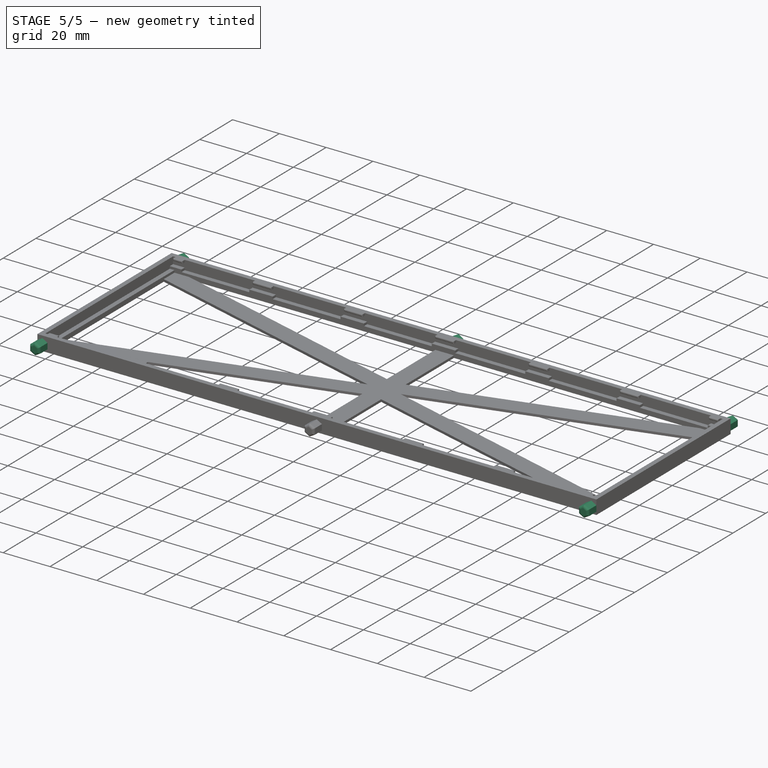
[diagram: stage 5 of 5 — iso view after this stage's code; geometry added in this stage tinted green]
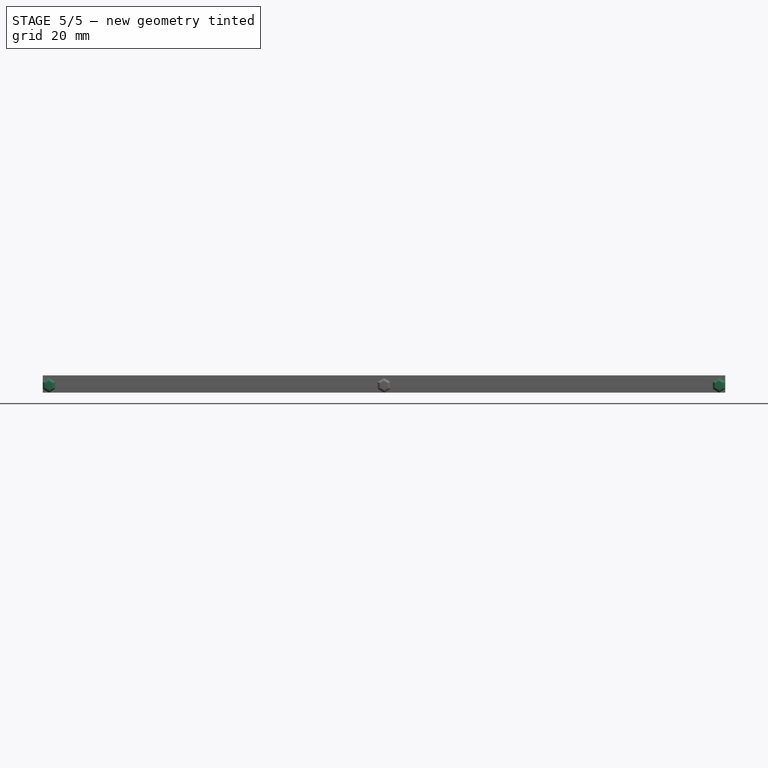
[diagram: stage 5 of 5 — front view after this stage's code; geometry added in this stage tinted green]
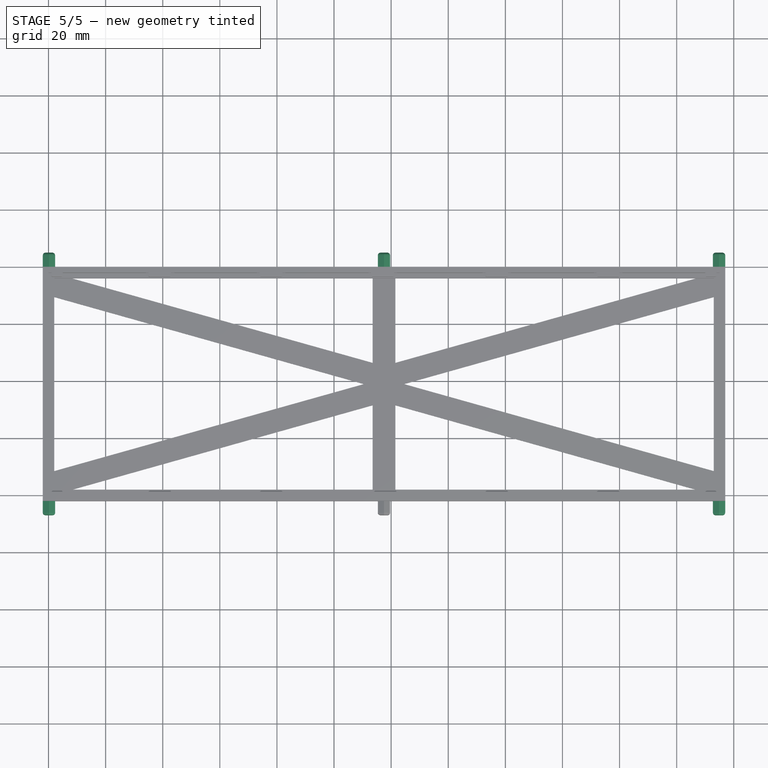
[diagram: stage 5 of 5 — top view after this stage's code; geometry added in this stage tinted green]
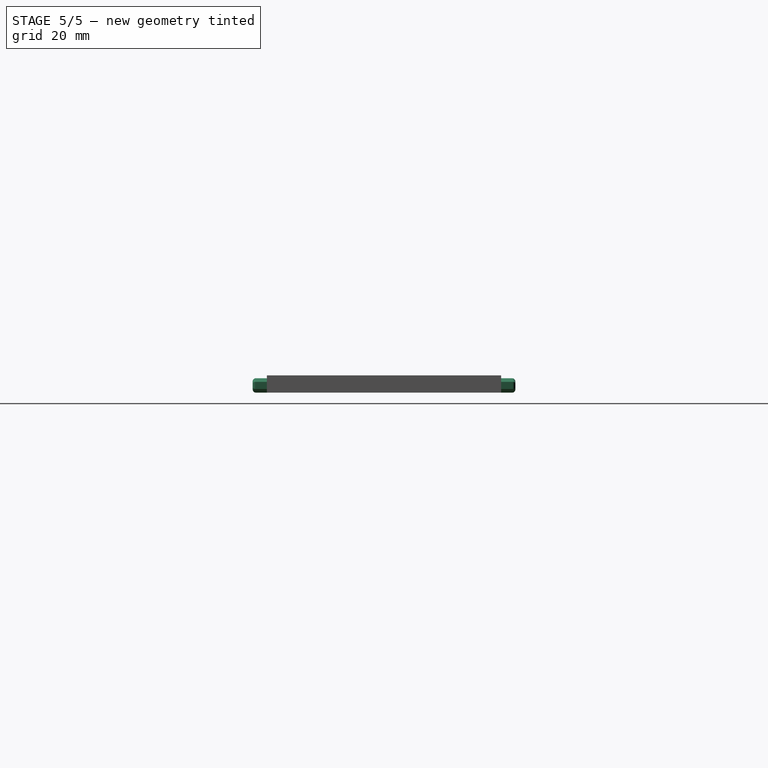
[diagram: stage 5 of 5 — right view after this stage's code; geometry added in this stage tinted green]
FEATURE [PartDesign::Fillet] Fillet014
  Base = -> Pad031 [Face177]
  BaseFeature = -> Pad031
  Radius = 1
  SupportTransform = false
FEATURE [Sketcher::SketchObject] Sketch032
  ExternalGeometry = -> [Fillet014]
  FullyConstrained = true
  MapMode = 5
  Placement = pos=(0,-2,0) rot=(1,0,0;1.5708rad)
  Support = -> [Fillet014]
  sketch-geometry (7):
    g0: LineSegment StartX=2.33013 StartY=-0.75 StartZ=0 EndX=2.33013 EndY=1.75 EndZ=0
    g1: LineSegment StartX=2.33013 StartY=1.75 StartZ=0 EndX=0.165064 EndY=3 EndZ=0
    g2: LineSegment StartX=0.165064 StartY=3 StartZ=0 EndX=-2 EndY=1.75 EndZ=0
    g3: LineSegment StartX=-2 StartY=1.75 StartZ=0 EndX=-2 EndY=-0.75 EndZ=0
    g4: LineSegment StartX=-2 StartY=-0.75 StartZ=0 EndX=0.165064 EndY=-2 EndZ=0
    g5: LineSegment StartX=0.165064 StartY=-2 StartZ=0 EndX=2.33013 EndY=-0.75 EndZ=0
    g6: Circle CenterX=0.165064 CenterY=0.5 CenterZ=0 NormalX=0 NormalY=0 NormalZ=1 AngleXU=0 Radius=2.5
  constraints (17):
    c: Coincident(g0,g1)
    c: Coincident(g1,g2)
    c: Coincident(g2,g3)
    c: Coincident(g3,g4)
    c: Coincident(g4,g5)
    c: Coincident(g5,g0)
    c: Equal(g0, g1-g5) x5
    c: PointOnObject(g0,g6)
    c: PointOnObject(g1,g6)
    c: PointOnObject(g2,g6)
    c: PointOnObject(g3,g6)
    c: PointOnObject(g4,g6)
    c: PointOnObject(g5,g6)
    c: Vertical(g0)
    c: Distance(g1,g4) = 5
    c: PointOnObject(g4,g-3)
    c: DistanceX(g-3,g3) = 0
FEATURE [PartDesign::Pad] Pad032
  BaseFeature = -> Fillet014
  Direction = (1,1,1)
  Length = 5
  Length2 = 100
  Profile = -> Sketch032
  Type = 0
FEATURE [PartDesign::Fillet] Fillet015
  Base = -> Pad032 [Face30]
  BaseFeature = -> Pad032
  Radius = 1
  SupportTransform = false
FEATURE [Sketcher::SketchObject] Sketch033
  ExternalGeometry = -> [Fillet015]
  FullyConstrained = true
  MapMode = 5
  Placement = pos=(0,-2,0) rot=(1,0,0;1.5708rad)
  Support = -> [Fillet015]
  sketch-geometry (7):
    g0: LineSegment StartX=237 StartY=-0.75 StartZ=0 EndX=237 EndY=1.75 EndZ=0
    g1: LineSegment StartX=237 StartY=1.75 StartZ=0 EndX=234.835 EndY=3 EndZ=0
    g2: LineSegment StartX=234.835 StartY=3 StartZ=0 EndX=232.67 EndY=1.75 EndZ=0
    g3: LineSegment StartX=232.67 StartY=1.75 StartZ=0 EndX=232.67 EndY=-0.75 EndZ=0
    g4: LineSegment StartX=232.67 StartY=-0.75 StartZ=0 EndX=234.835 EndY=-2 EndZ=0
    g5: LineSegment StartX=234.835 StartY=-2 StartZ=0 EndX=237 EndY=-0.75 EndZ=0
    g6: Circle CenterX=234.835 CenterY=0.5 CenterZ=0 NormalX=0 NormalY=0 NormalZ=1 AngleXU=0 Radius=2.5
  constraints (17):
    c: Coincident(g0,g1)
    c: Coincident(g1,g2)
    c: Coincident(g2,g3)
    c: Coincident(g3,g4)
    c: Coincident(g4,g5)
    c: Coincident(g5,g0)
    c: Equal(g0, g1-g5) x5
    c: PointOnObject(g0,g6)
    c: PointOnObject(g1,g6)
    c: PointOnObject(g2,g6)
    c: PointOnObject(g3,g6)
    c: PointOnObject(g4,g6)
    c: PointOnObject(g5,g6)
    c: Vertical(g0)
    c: Distance(g1,g4) = 5
    c: PointOnObject(g4,g-3)
    c: DistanceX(g0,g-3) = 0
FEATURE [PartDesign::Pad] Pad033
  BaseFeature = -> Fillet015
  Direction = (1,1,1)
  Length = 5
  Length2 = 100
  Profile = -> Sketch033
  Type = 0
FEATURE [PartDesign::Fillet] Fillet016
  Base = -> Pad033 [Face62]
  BaseFeature = -> Pad033
  Radius = 1
  SupportTransform = false
FEATURE [Sketcher::SketchObject] Sketch034
  ExternalGeometry = -> [Fillet016]
  FullyConstrained = true
  MapMode = 5
  Placement = pos=(0,80,0) rot=(0,0.707107,0.707107;3.14159rad)
  Support = -> [Fillet016]
  sketch-geometry (7):
    g0: LineSegment StartX=-115.335 StartY=-0.75 StartZ=0 EndX=-115.335 EndY=1.75 EndZ=0
    g1: LineSegment StartX=-115.335 StartY=1.75 StartZ=0 EndX=-117.5 EndY=3 EndZ=0
    g2: LineSegment StartX=-117.5 StartY=3 StartZ=0 EndX=-119.665 EndY=1.75 EndZ=0
    g3: LineSegment StartX=-119.665 StartY=1.75 StartZ=0 EndX=-119.665 EndY=-0.75 EndZ=0
    g4: LineSegment StartX=-119.665 StartY=-0.75 StartZ=0 EndX=-117.5 EndY=-2 EndZ=0
    g5: LineSegment StartX=-117.5 StartY=-2 StartZ=0 EndX=-115.335 EndY=-0.75 EndZ=0
    g6: Circle CenterX=-117.5 CenterY=0.5 CenterZ=0 NormalX=0 NormalY=0 NormalZ=1 AngleXU=0 Radius=2.5
  constraints (17):
    c: Coincident(g0,g1)
    c: Coincident(g1,g2)
    c: Coincident(g2,g3)
    c: Coincident(g3,g4)
    c: Coincident(g4,g5)
    c: Coincident(g5,g0)
    c: Equal(g0, g1-g5) x5
    c: PointOnObject(g0,g6)
    c: PointOnObject(g1,g6)
    c: PointOnObject(g2,g6)
    c: PointOnObject(g3,g6)
    c: PointOnObject(g4,g6)
    c: PointOnObject(g5,g6)
    c: Vertical(g0)
    c: Distance(g1,g4) = 5
    c: PointOnObject(g4,g-3)
    c: Distance(g-3,g4) = 119.5
FEATURE [PartDesign::Pad] Pad034
  BaseFeature = -> Fillet016
  Direction = (1,1,1)
  Length = 5
  Length2 = 100
  Profile = -> Sketch034
  Type = 0
FEATURE [PartDesign::Fillet] Fillet017
  Base = -> Pad034 [Face214]
  BaseFeature = -> Pad034
  Radius = 1
  SupportTransform = false
FEATURE [Sketcher::SketchObject] Sketch035
  ExternalGeometry = -> [Fillet017]
  FullyConstrained = true
  MapMode = 5
  Placement = pos=(0,80,0) rot=(0,0.707107,0.707107;3.14159rad)
  Support = -> [Fillet017]
  sketch-geometry (7):
    g0: LineSegment StartX=-232.67 StartY=-0.75 StartZ=0 EndX=-232.67 EndY=1.75 EndZ=0
    g1: LineSegment StartX=-232.67 StartY=1.75 StartZ=0 EndX=-234.835 EndY=3 EndZ=0
    g2: LineSegment StartX=-234.835 StartY=3 StartZ=0 EndX=-237 EndY=1.75 EndZ=0
    g3: LineSegment StartX=-237 StartY=1.75 StartZ=0 EndX=-237 EndY=-0.75 EndZ=0
    g4: LineSegment StartX=-237 StartY=-0.75 StartZ=0 EndX=-234.835 EndY=-2 EndZ=0
    g5: LineSegment StartX=-234.835 StartY=-2 StartZ=0 EndX=-232.67 EndY=-0.75 EndZ=0
    g6: Circle CenterX=-234.835 CenterY=0.5 CenterZ=0 NormalX=0 NormalY=0 NormalZ=1 AngleXU=0 Radius=2.5
  constraints (17):
    c: Coincident(g0,g1)
    c: Coincident(g1,g2)
    c: Coincident(g2,g3)
    c: Coincident(g3,g4)
    c: Coincident(g4,g5)
    c: Coincident(g5,g0)
    c: Equal(g0, g1-g5) x5
    c: PointOnObject(g0,g6)
    c: PointOnObject(g1,g6)
    c: PointOnObject(g2,g6)
    c: PointOnObject(g3,g6)
    c: PointOnObject(g4,g6)
    c: PointOnObject(g5,g6)
    c: Vertical(g0)
    c: Distance(g4,g1) = 5
    c: PointOnObject(g4,g-3)
    c: DistanceX(g-3,g3) = 0
FEATURE [PartDesign::Pad] Pad035
  BaseFeature = -> Fillet017
  Direction = (1,1,1)
  Length = 5
  Length2 = 100
  Profile = -> Sketch035
  Type = 0
FEATURE [PartDesign::Fillet] Fillet018
  Base = -> Pad035 [Face27]
  BaseFeature = -> Pad035
  Radius = 1
  SupportTransform = false
FEATURE [Sketcher::SketchObject] Sketch036
  ExternalGeometry = -> [Fillet018]
  FullyConstrained = true
  MapMode = 5
  Placement = pos=(0,80,0) rot=(0,0.707107,0.707107;3.14159rad)
  Support = -> [Fillet018]
  sketch-geometry (7):
    g0: LineSegment StartX=2 StartY=-0.75 StartZ=0 EndX=2 EndY=1.75 EndZ=0
    g1: LineSegment StartX=2 StartY=1.75 StartZ=0 EndX=-0.165064 EndY=3 EndZ=0
    g2: LineSegment StartX=-0.165064 StartY=3 StartZ=0 EndX=-2.33013 EndY=1.75 EndZ=0
    g3: LineSegment StartX=-2.33013 StartY=1.75 StartZ=0 EndX=-2.33013 EndY=-0.75 EndZ=0
    g4: LineSegment StartX=-2.33013 StartY=-0.75 StartZ=0 EndX=-0.165064 EndY=-2 EndZ=0
    g5: LineSegment StartX=-0.165064 StartY=-2 StartZ=0 EndX=2 EndY=-0.75 EndZ=0
    g6: Circle CenterX=-0.165064 CenterY=0.5 CenterZ=0 NormalX=0 NormalY=0 NormalZ=1 AngleXU=0 Radius=2.5
  constraints (17):
    c: Coincident(g0,g1)
    c: Coincident(g1,g2)
    c: Coincident(g2,g3)
    c: Coincident(g3,g4)
    c: Coincident(g4,g5)
    c: Coincident(g5,g0)
    c: Equal(g0, g1-g5) x5
    c: PointOnObject(g0,g6)
    c: PointOnObject(g1,g6)
    c: PointOnObject(g2,g6)
    c: PointOnObject(g3,g6)
    c: PointOnObject(g4,g6)
    c: PointOnObject(g5,g6)
    c: Vertical(g0)
    c: Distance(g4,g1) = 5
    c: PointOnObject(g4,g-3)
    c: DistanceX(g0,g-3) = 0
FEATURE [PartDesign::Pad] Pad036
  BaseFeature = -> Fillet018
  Direction = (1,1,1)
  Length = 5
  Length2 = 100
  Profile = -> Sketch036
  Type = 0
FEATURE [PartDesign::Fillet] Fillet019
  Base = -> Pad036 [Face64]
  BaseFeature = -> Pad036
  Radius = 1
  SupportTransform = false
FEATURE [PartDesign::Body] Body
  Group = -> [Sketch,Pad,Sketch001,Pad001,Sketch002,Pad002,Sketch003,Pad003,Sketch004,Pad004,Sketch005,Pad005,Sketch006,Pad006,Sketch007,Pad007,Sketch008,Pad008,Fillet,Fillet001,Fillet002,Fillet003,Sketch009,Pad009,Sketch010,Pad010,Sketch011,Pad011,Sketch012,Pad012,Sketch013,Pad013,Sketch014,Pad014,Sketch015,Pad015,Sketch016,Pad016,Sketch017,Pad017,Sketch018,Pad018,Fillet004,Fillet005,Fillet006,Fillet007,+48 more]
  Origin = -> Origin
  Tip = -> Fillet019
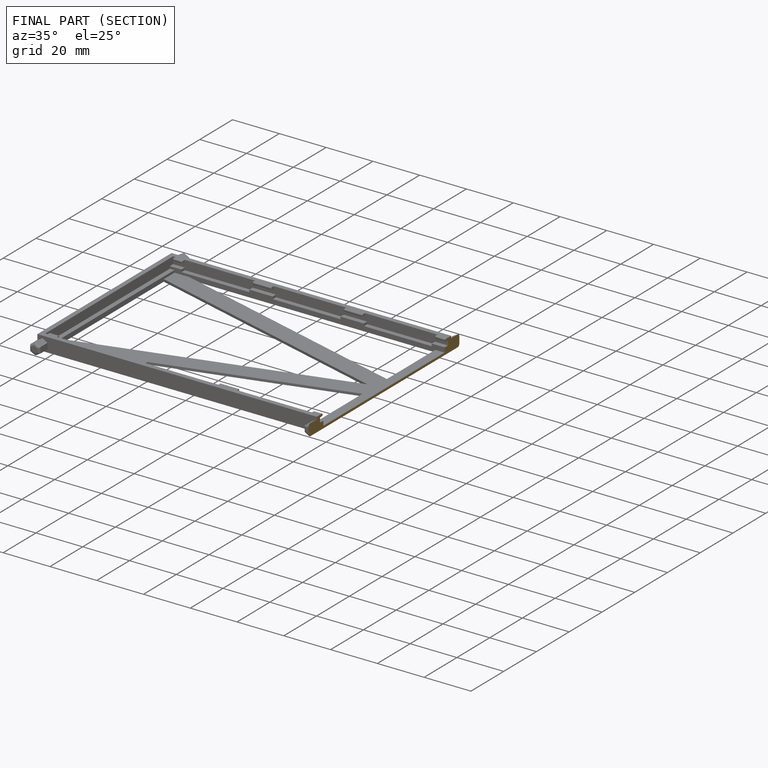
[diagram: finished part — half-section view (interior)]
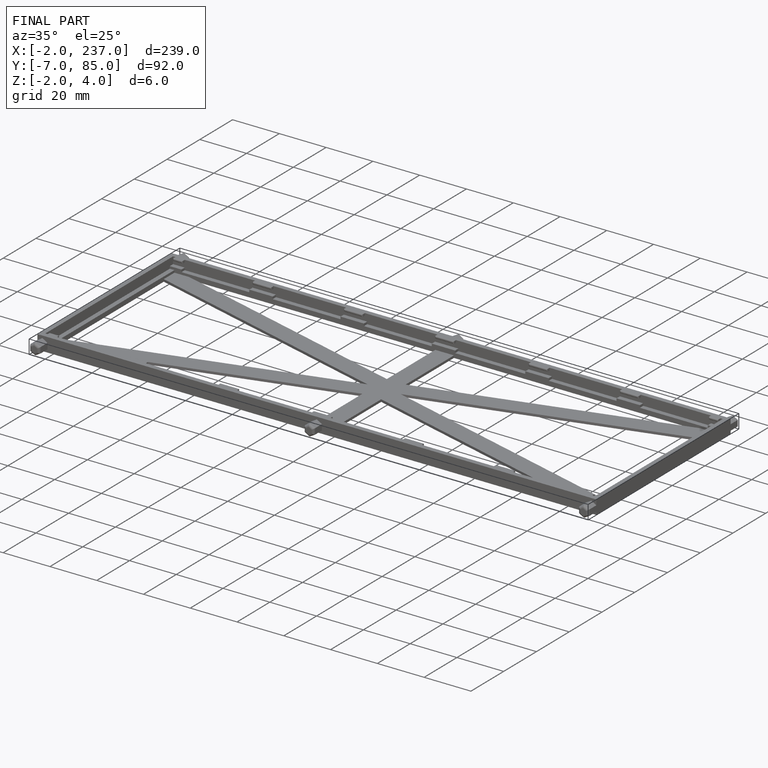
[diagram: finished part — iso view with bounding-box wireframe]
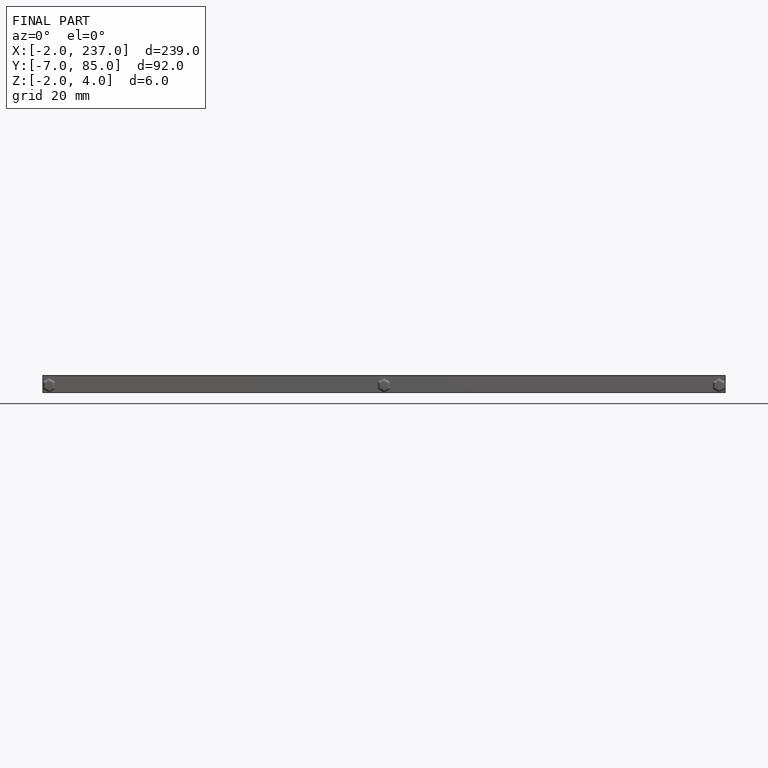
[diagram: finished part — front view with bounding-box wireframe]
